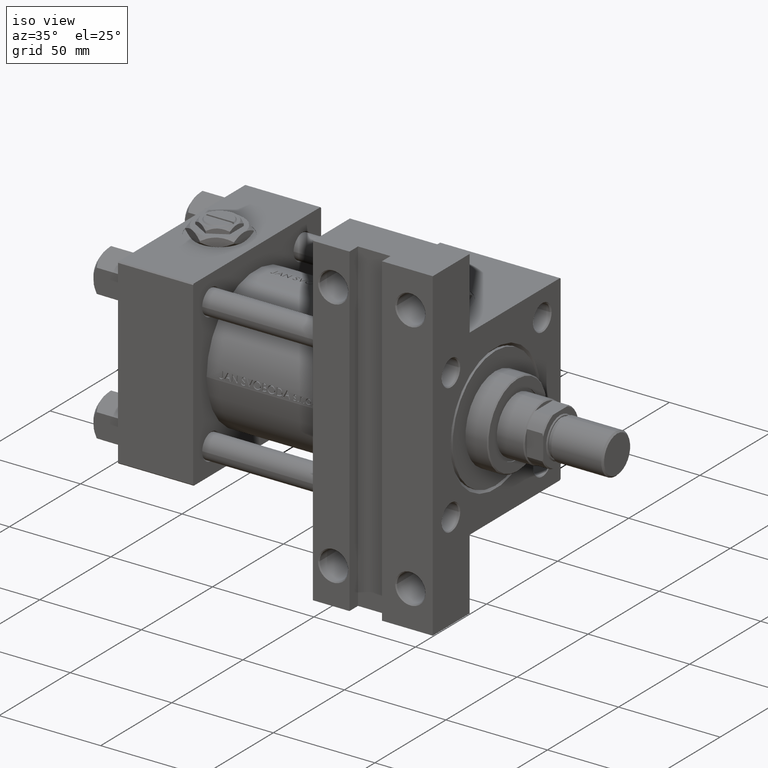
[diagram: clean part render]
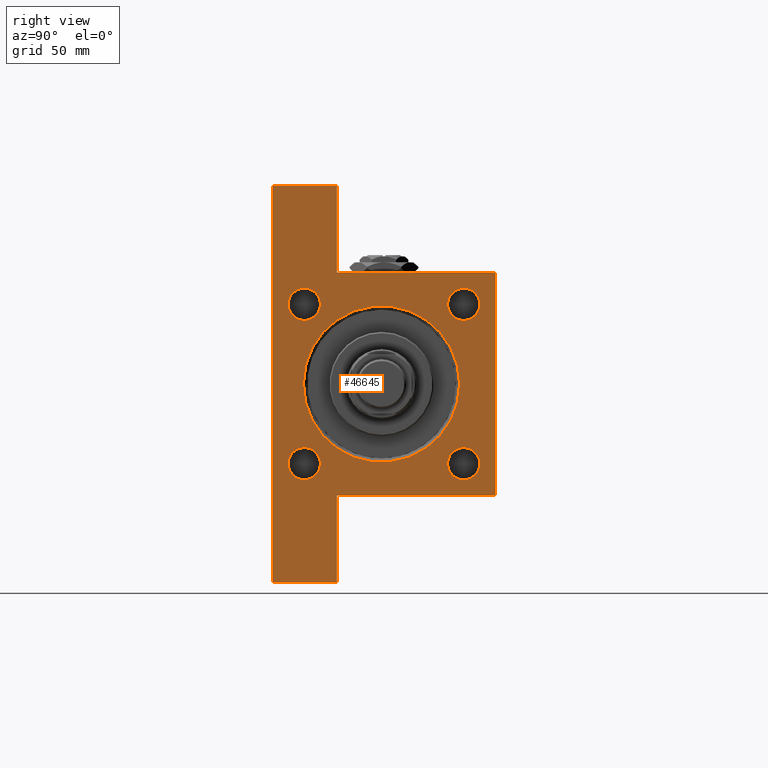
[diagram: tour spotlight — one face highlighted and labeled with its STEP entity id]
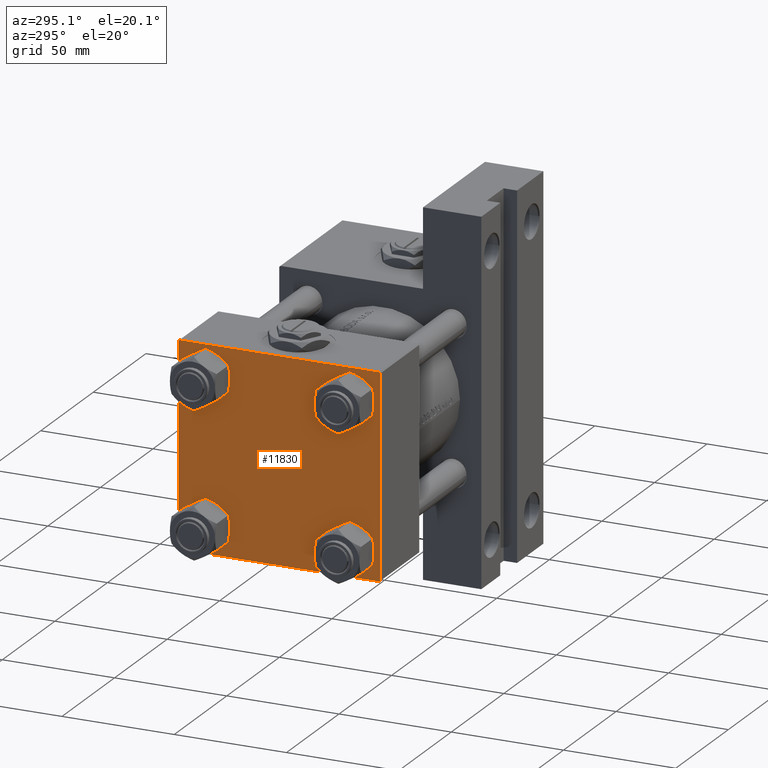
[diagram: tour spotlight — one face highlighted and labeled with its STEP entity id]
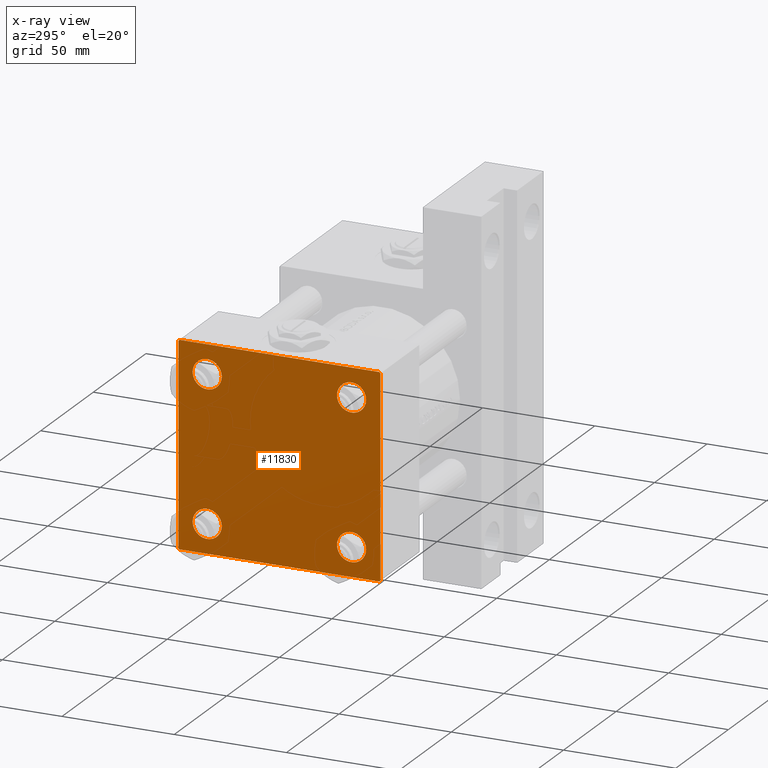
[diagram: x-ray of the same camera — body ghosted, this tour face saturated]
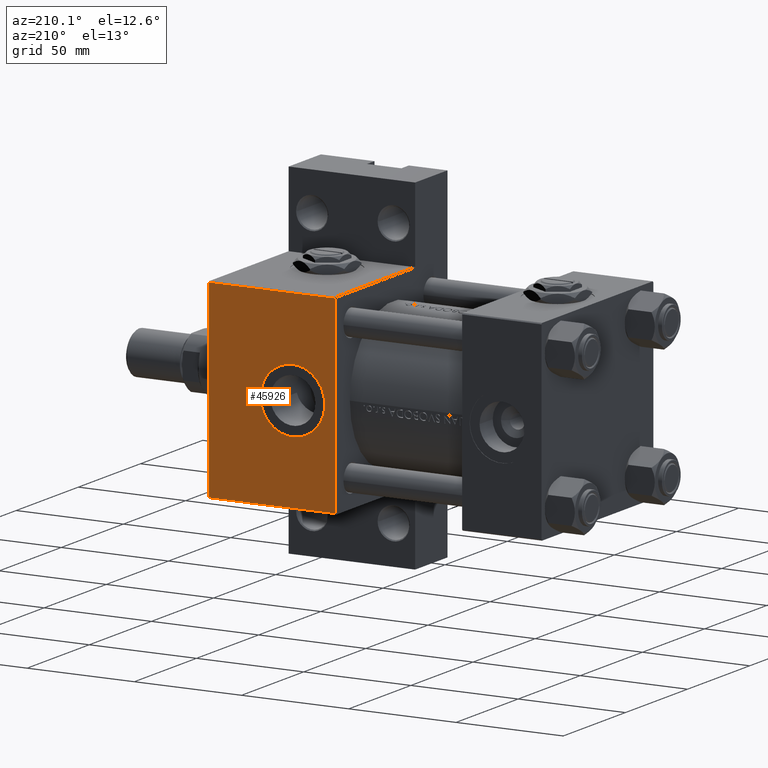
[diagram: tour spotlight — one face highlighted and labeled with its STEP entity id]
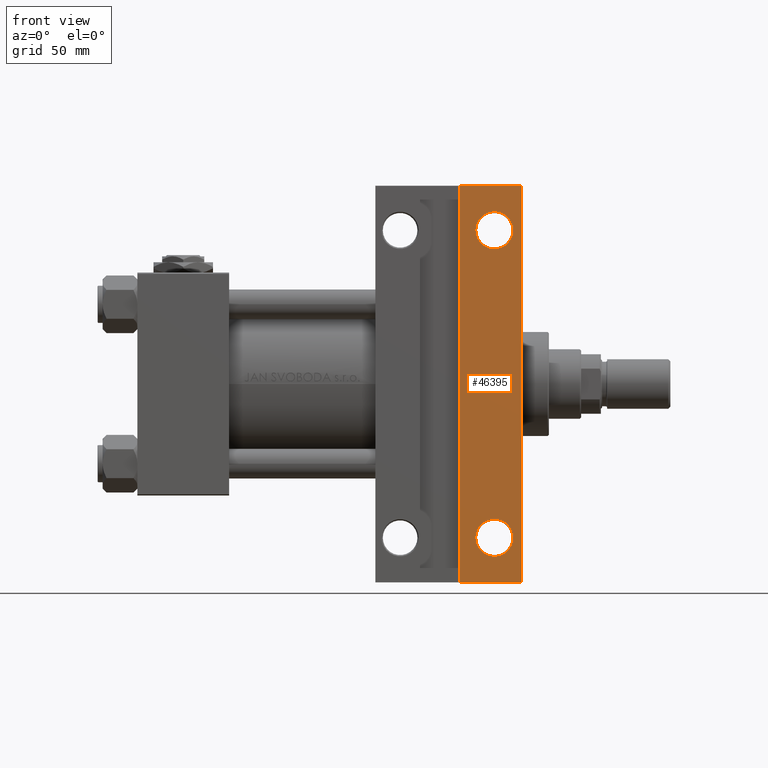
[diagram: tour spotlight — one face highlighted and labeled with its STEP entity id]
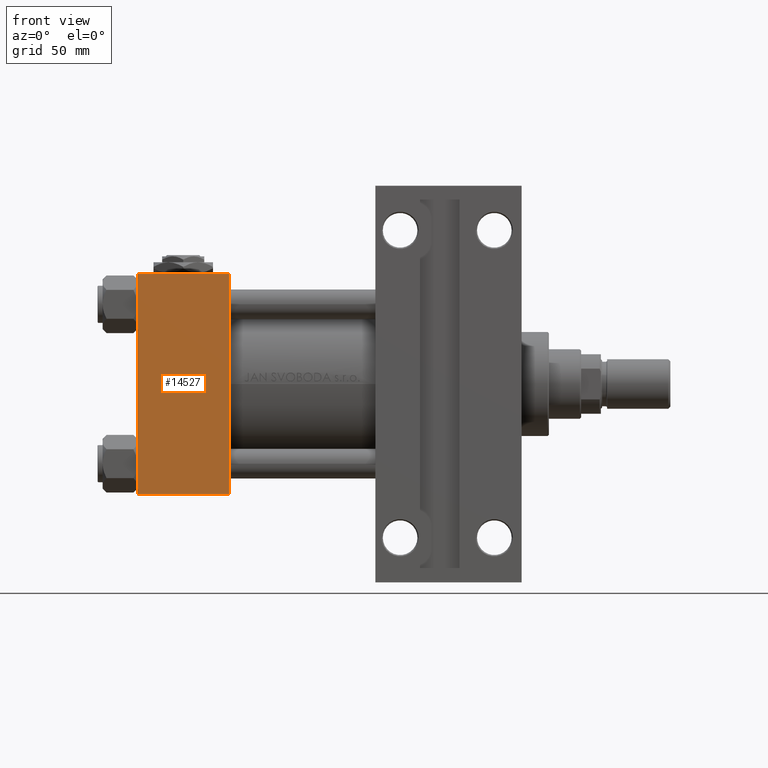
[diagram: tour spotlight — one face highlighted and labeled with its STEP entity id]
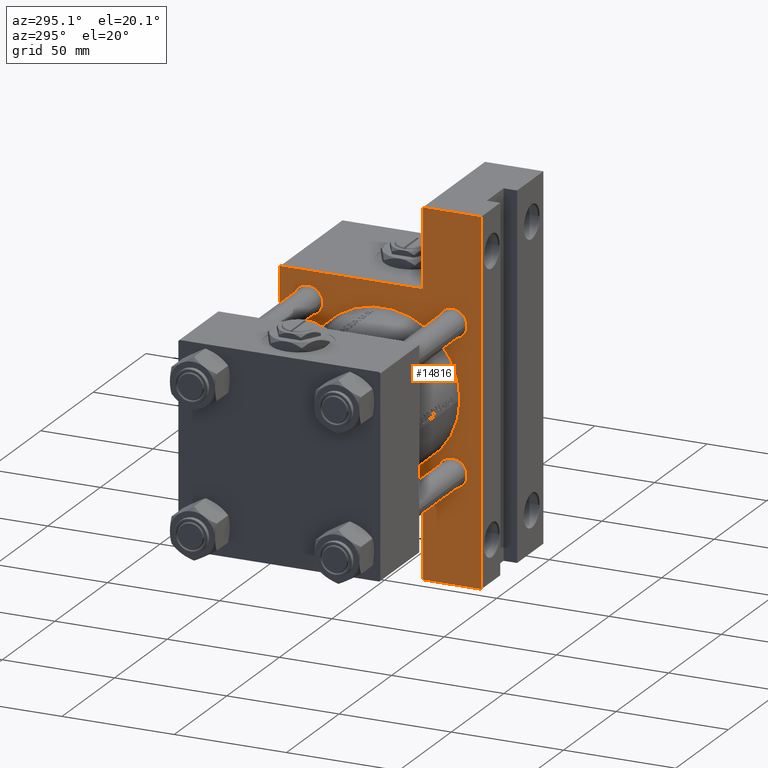
[diagram: tour spotlight — one face highlighted and labeled with its STEP entity id]
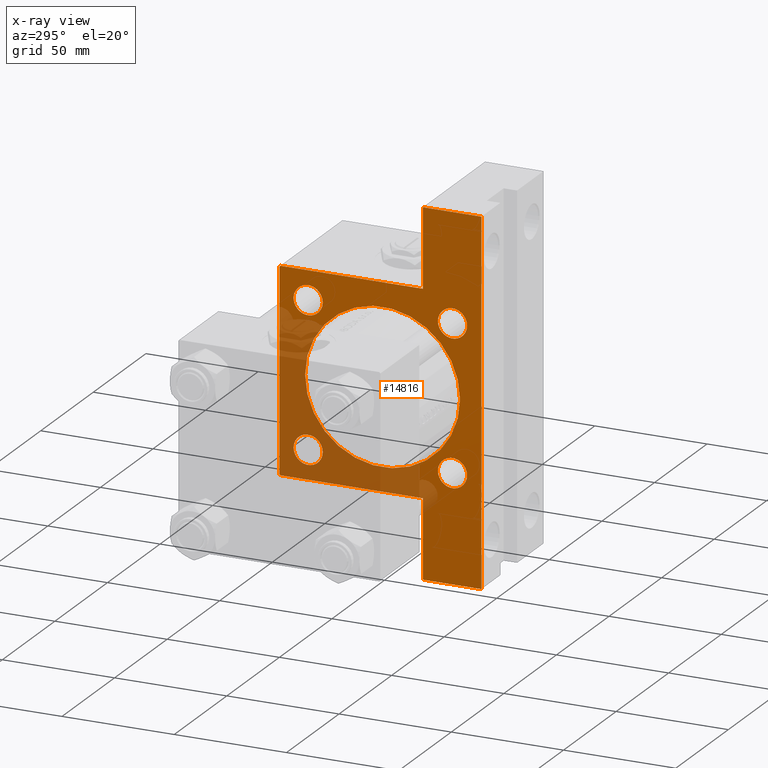
[diagram: x-ray of the same camera — body ghosted, this tour face saturated]
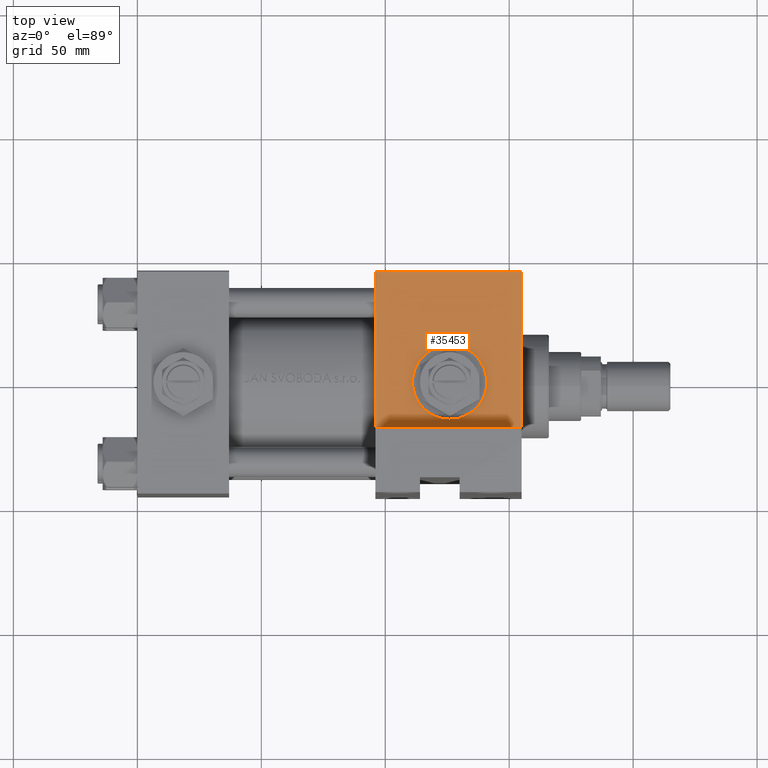
[diagram: tour spotlight — one face highlighted and labeled with its STEP entity id]
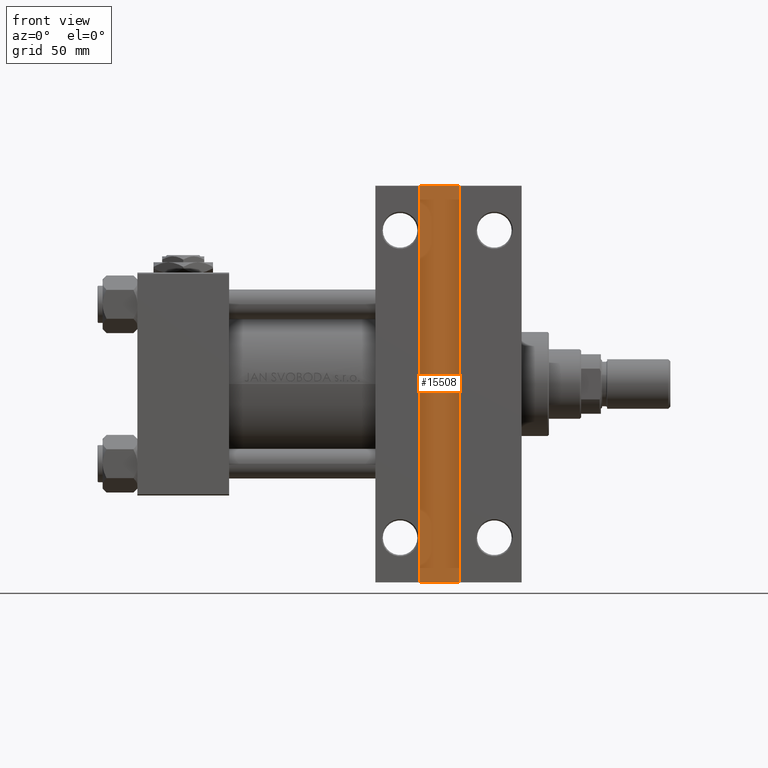
[diagram: tour spotlight — one face highlighted and labeled with its STEP entity id]
A machine part: a face-by-face anatomy tour. The part has 1217 B-rep faces; the first image is the clean iso view, then the 8 largest visible faces are spotlighted one at a time (largest first), each with its STEP entity span.

Face 1 — right view, entity #46645. In plain terms, the highlighted planar face has unit normal (-1, 0, -0).
Definition (entity closure, byte-faithful):
#147 = ORIENTED_EDGE ( 'NONE', *, *, #46190, .T. ) ;
#239 = EDGE_CURVE ( 'NONE', #43325, #18439, #8954, .T. ) ;
#549 = EDGE_CURVE ( 'NONE', #44969, #30738, #42176, .T. ) ;
#610 = ORIENTED_EDGE ( 'NONE', *, *, #20332, .T. ) ;
#789 = LINE ( 'NONE', #30963, #5545 ) ;
#1195 = CARTESIAN_POINT ( 'NONE',  ( 154.9999999999999716, -80.00000000000002842, -19.00000000000000000 ) ) ;
#1834 = ORIENTED_EDGE ( 'NONE', *, *, #31237, .T. ) ;
#1953 = PLANE ( 'NONE',  #44681 ) ;
#2257 = DIRECTION ( 'NONE',  ( -1.000000000000000000, -0.000000000000000000, -0.000000000000000000 ) ) ;
#2272 = DIRECTION ( 'NONE',  ( -1.000000000000000000, -0.000000000000000000, -0.000000000000000000 ) ) ;
#2455 = FACE_BOUND ( 'NONE', #11217, .T. ) ;
#2903 = CIRCLE ( 'NONE', #39300, 6.500000000000005329 ) ;
#2926 = CARTESIAN_POINT ( 'NONE',  ( 155.0000000000000000, 32.14999999999999147, -32.15000000000000568 ) ) ;
#2964 = CARTESIAN_POINT ( 'NONE',  ( 155.0000000000000000, 80.00000000000000000, -19.00000000000000000 ) ) ;
#3103 = CARTESIAN_POINT ( 'NONE',  ( 155.0000000000000000, 0.000000000000000000, -1.000000000000000888 ) ) ;
#3385 = LINE ( 'NONE', #15015, #14278 ) ;
#3554 = VERTEX_POINT ( 'NONE', #34773 ) ;
#3558 = EDGE_CURVE ( 'NONE', #46590, #13639, #789, .T. ) ;
#3719 = CARTESIAN_POINT ( 'NONE',  ( 154.9999999999999716, -80.00000000000002842, -19.00000000000000000 ) ) ;
#3722 = ORIENTED_EDGE ( 'NONE', *, *, #9832, .T. ) ;
#4582 = AXIS2_PLACEMENT_3D ( 'NONE', #4623, #20101, #48007 ) ;
#4623 = CARTESIAN_POINT ( 'NONE',  ( 155.0000000000000000, -32.15000000000001279, -32.15000000000000568 ) ) ;
#4973 = VERTEX_POINT ( 'NONE', #23503 ) ;
#5545 = VECTOR ( 'NONE', #16239, 1000.000000000000000 ) ;
#5581 = CARTESIAN_POINT ( 'NONE',  ( 155.0000000000000000, -32.14999999999999147, 32.14999999999999147 ) ) ;
#5785 = VECTOR ( 'NONE', #26783, 1000.000000000000000 ) ;
#5998 = DIRECTION ( 'NONE',  ( -0.000000000000000000, 0.000000000000000000, 1.000000000000000000 ) ) ;
#6151 = VECTOR ( 'NONE', #9508, 1000.000000000000000 ) ;
#6791 = ORIENTED_EDGE ( 'NONE', *, *, #26577, .T. ) ;
#7229 = DIRECTION ( 'NONE',  ( -1.000000000000000000, -0.000000000000000000, -0.000000000000000000 ) ) ;
#7730 = EDGE_LOOP ( 'NONE', ( #3722, #43934 ) ) ;
#7951 = EDGE_CURVE ( 'NONE', #11827, #46590, #11061, .T. ) ;
#8004 = CARTESIAN_POINT ( 'NONE',  ( 154.9999999999999432, 44.99999999999998579, -19.00000000000000000 ) ) ;
#8442 = ORIENTED_EDGE ( 'NONE', *, *, #32206, .T. ) ;
#8472 = CARTESIAN_POINT ( 'NONE',  ( 155.0000000000000000, 32.14999999999999147, 25.64999999999999858 ) ) ;
#8666 = CARTESIAN_POINT ( 'NONE',  ( 155.0000000000000000, 32.14999999999999147, 38.65000000000001279 ) ) ;
#8803 = CARTESIAN_POINT ( 'NONE',  ( 154.9999999999999716, -80.00000000000002842, -45.00000000000000000 ) ) ;
#8954 = CIRCLE ( 'NONE', #12988, 6.500000000000005329 ) ;
#9508 = DIRECTION ( 'NONE',  ( 0.000000000000000000, -1.000000000000000000, -1.541976423090495140E-16 ) ) ;
#9832 = EDGE_CURVE ( 'NONE', #42331, #24636, #2903, .T. ) ;
#9897 = ORIENTED_EDGE ( 'NONE', *, *, #7951, .T. ) ;
#10414 = EDGE_CURVE ( 'NONE', #21009, #21939, #29140, .T. ) ;
#10473 = DIRECTION ( 'NONE',  ( 0.000000000000000000, 7.709882115452478166E-17, -1.000000000000000000 ) ) ;
#11061 = LINE ( 'NONE', #3719, #40393 ) ;
#11153 = CARTESIAN_POINT ( 'NONE',  ( 155.0000000000000000, -32.14999999999999147, 32.14999999999999147 ) ) ;
#11155 = LINE ( 'NONE', #26636, #18718 ) ;
#11217 = EDGE_LOOP ( 'NONE', ( #24372, #16137 ) ) ;
#11463 = CARTESIAN_POINT ( 'NONE',  ( 155.0000000000000000, 32.14999999999999147, 32.15000000000000568 ) ) ;
#11548 = LINE ( 'NONE', #2964, #5785 ) ;
#11706 = DIRECTION ( 'NONE',  ( 0.000000000000000000, 0.000000000000000000, 1.000000000000000000 ) ) ;
#11827 = VERTEX_POINT ( 'NONE', #48685 ) ;
#12133 = DIRECTION ( 'NONE',  ( 0.000000000000000000, 0.000000000000000000, 1.000000000000000000 ) ) ;
#12174 = CARTESIAN_POINT ( 'NONE',  ( 155.0000000000000000, 45.00000000000001421, 44.50000000000000000 ) ) ;
#12374 = DIRECTION ( 'NONE',  ( -1.000000000000000000, -0.000000000000000000, -0.000000000000000000 ) ) ;
#12988 = AXIS2_PLACEMENT_3D ( 'NONE', #11463, #31732, #11706 ) ;
#13639 = VERTEX_POINT ( 'NONE', #8803 ) ;
#13792 = EDGE_CURVE ( 'NONE', #31527, #13639, #23297, .T. ) ;
#13993 = ORIENTED_EDGE ( 'NONE', *, *, #47435, .F. ) ;
#14278 = VECTOR ( 'NONE', #10473, 1000.000000000000000 ) ;
#14352 = VERTEX_POINT ( 'NONE', #14508 ) ;
#14508 = CARTESIAN_POINT ( 'NONE',  ( 155.0000000000000000, 44.50000000000001421, 45.00000000000000000 ) ) ;
#15015 = CARTESIAN_POINT ( 'NONE',  ( 155.0000000000000000, -45.00000000000000000, 44.99999999999998579 ) ) ;
#15987 = ORIENTED_EDGE ( 'NONE', *, *, #549, .T. ) ;
#16137 = ORIENTED_EDGE ( 'NONE', *, *, #32956, .T. ) ;
#16239 = DIRECTION ( 'NONE',  ( 0.000000000000000000, 0.000000000000000000, -1.000000000000000000 ) ) ;
#16710 = CARTESIAN_POINT ( 'NONE',  ( 155.0000000000000000, -32.14999999999999147, 38.64999999999999858 ) ) ;
#17218 = CARTESIAN_POINT ( 'NONE',  ( 155.0000000000000000, 45.00000000000001421, 45.00000000000000000 ) ) ;
#17721 = DIRECTION ( 'NONE',  ( 0.000000000000000000, 0.000000000000000000, 1.000000000000000000 ) ) ;
#18321 = CARTESIAN_POINT ( 'NONE',  ( 155.0000000000000000, 3.857637417314162689E-15, 30.50000000000000000 ) ) ;
#18439 = VERTEX_POINT ( 'NONE', #8472 ) ;
#18718 = VECTOR ( 'NONE', #42119, 1000.000000000000000 ) ;
#18764 = DIRECTION ( 'NONE',  ( 0.000000000000000000, -1.000000000000000000, 0.000000000000000000 ) ) ;
#19029 = DIRECTION ( 'NONE',  ( -1.000000000000000000, -0.000000000000000000, -0.000000000000000000 ) ) ;
#19030 = CARTESIAN_POINT ( 'NONE',  ( 155.0000000000000000, 0.000000000000000000, -1.000000000000000888 ) ) ;
#19734 = AXIS2_PLACEMENT_3D ( 'NONE', #3103, #12374, #12133 ) ;
#19780 = DIRECTION ( 'NONE',  ( -1.000000000000000000, -0.000000000000000000, -0.000000000000000000 ) ) ;
#20101 = DIRECTION ( 'NONE',  ( -1.000000000000000000, -0.000000000000000000, -0.000000000000000000 ) ) ;
#20167 = EDGE_LOOP ( 'NONE', ( #15987, #6791 ) ) ;
#20332 = EDGE_CURVE ( 'NONE', #28238, #36087, #42819, .T. ) ;
#20334 = CARTESIAN_POINT ( 'NONE',  ( 155.0000000000000000, 0.000000000000000000, -32.50000000000000000 ) ) ;
#20543 = LINE ( 'NONE', #40054, #22435 ) ;
#20578 = CARTESIAN_POINT ( 'NONE',  ( 155.0000000000000000, 32.14999999999999147, -32.15000000000000568 ) ) ;
#20810 = CIRCLE ( 'NONE', #4582, 6.500000000000005329 ) ;
#21009 = VERTEX_POINT ( 'NONE', #12174 ) ;
#21137 = VERTEX_POINT ( 'NONE', #36503 ) ;
#21939 = VERTEX_POINT ( 'NONE', #8004 ) ;
#22435 = VECTOR ( 'NONE', #39556, 1000.000000000000114 ) ;
#23067 = ORIENTED_EDGE ( 'NONE', *, *, #28175, .T. ) ;
#23086 = AXIS2_PLACEMENT_3D ( 'NONE', #2926, #7229, #42223 ) ;
#23297 = LINE ( 'NONE', #38506, #39476 ) ;
#23346 = EDGE_CURVE ( 'NONE', #24636, #42331, #45809, .T. ) ;
#23440 = EDGE_LOOP ( 'NONE', ( #48153, #49819, #1834, #42189, #43400, #9897, #43084, #38279, #13993, #147 ) ) ;
#23503 = CARTESIAN_POINT ( 'NONE',  ( 155.0000000000000000, -32.15000000000001279, -38.65000000000001990 ) ) ;
#23812 = DIRECTION ( 'NONE',  ( 0.000000000000000000, 0.000000000000000000, 1.000000000000000000 ) ) ;
#23983 = CIRCLE ( 'NONE', #30471, 6.500000000000005329 ) ;
#24372 = ORIENTED_EDGE ( 'NONE', *, *, #33304, .T. ) ;
#24636 = VERTEX_POINT ( 'NONE', #34798 ) ;
#25268 = FACE_BOUND ( 'NONE', #37077, .T. ) ;
#25335 = DIRECTION ( 'NONE',  ( 0.000000000000000000, 0.000000000000000000, 1.000000000000000000 ) ) ;
#25510 = FACE_BOUND ( 'NONE', #42083, .T. ) ;
#26334 = EDGE_CURVE ( 'NONE', #21009, #14352, #27958, .T. ) ;
#26577 = EDGE_CURVE ( 'NONE', #30738, #44969, #44033, .T. ) ;
#26633 = DIRECTION ( 'NONE',  ( 0.000000000000000000, 0.000000000000000000, 1.000000000000000000 ) ) ;
#26636 = CARTESIAN_POINT ( 'NONE',  ( 155.0000000000000000, 80.00000000000000000, -19.00000000000000000 ) ) ;
#26783 = DIRECTION ( 'NONE',  ( 0.000000000000000000, 0.000000000000000000, -1.000000000000000000 ) ) ;
#27678 = DIRECTION ( 'NONE',  ( 0.000000000000000000, 0.000000000000000000, 1.000000000000000000 ) ) ;
#27958 = LINE ( 'NONE', #43451, #33504 ) ;
#28175 = EDGE_CURVE ( 'NONE', #36087, #28238, #49003, .T. ) ;
#28238 = VERTEX_POINT ( 'NONE', #16710 ) ;
#29140 = LINE ( 'NONE', #17218, #37742 ) ;
#29378 = DIRECTION ( 'NONE',  ( 0.000000000000000000, 0.000000000000000000, -1.000000000000000000 ) ) ;
#29562 = FACE_OUTER_BOUND ( 'NONE', #23440, .T. ) ;
#30471 = AXIS2_PLACEMENT_3D ( 'NONE', #36967, #2257, #17721 ) ;
#30738 = VERTEX_POINT ( 'NONE', #18321 ) ;
#30840 = DIRECTION ( 'NONE',  ( 7.930164461608253537E-16, -1.000000000000000000, -0.000000000000000000 ) ) ;
#30963 = CARTESIAN_POINT ( 'NONE',  ( 154.9999999999999716, -80.00000000000002842, -19.00000000000000000 ) ) ;
#31237 = EDGE_CURVE ( 'NONE', #14352, #44998, #36408, .T. ) ;
#31527 = VERTEX_POINT ( 'NONE', #49290 ) ;
#31732 = DIRECTION ( 'NONE',  ( -1.000000000000000000, -0.000000000000000000, -0.000000000000000000 ) ) ;
#32206 = EDGE_CURVE ( 'NONE', #18439, #43325, #41003, .T. ) ;
#32396 = EDGE_CURVE ( 'NONE', #21137, #11827, #3385, .T. ) ;
#32597 = CARTESIAN_POINT ( 'NONE',  ( 155.0000000000000000, 45.00000000000001421, 45.00000000000000000 ) ) ;
#32956 = EDGE_CURVE ( 'NONE', #40649, #4973, #23983, .T. ) ;
#33304 = EDGE_CURVE ( 'NONE', #4973, #40649, #20810, .T. ) ;
#33504 = VECTOR ( 'NONE', #43199, 1000.000000000000114 ) ;
#33611 = CARTESIAN_POINT ( 'NONE',  ( 155.0000000000000000, -32.14999999999999147, 25.64999999999998437 ) ) ;
#33619 = EDGE_CURVE ( 'NONE', #44998, #21137, #20543, .T. ) ;
#34773 = CARTESIAN_POINT ( 'NONE',  ( 155.0000000000000000, 80.00000000000000000, -19.00000000000000000 ) ) ;
#34798 = CARTESIAN_POINT ( 'NONE',  ( 155.0000000000000000, 32.14999999999999147, -25.64999999999999858 ) ) ;
#35519 = AXIS2_PLACEMENT_3D ( 'NONE', #5581, #2272, #25335 ) ;
#35908 = DIRECTION ( 'NONE',  ( 0.000000000000000000, 0.000000000000000000, 1.000000000000000000 ) ) ;
#36087 = VERTEX_POINT ( 'NONE', #33611 ) ;
#36173 = FACE_BOUND ( 'NONE', #7730, .T. ) ;
#36408 = LINE ( 'NONE', #32597, #6151 ) ;
#36503 = CARTESIAN_POINT ( 'NONE',  ( 155.0000000000000000, -45.00000000000000000, 44.49999999999998579 ) ) ;
#36967 = CARTESIAN_POINT ( 'NONE',  ( 155.0000000000000000, -32.15000000000001279, -32.15000000000000568 ) ) ;
#37077 = EDGE_LOOP ( 'NONE', ( #8442, #37407 ) ) ;
#37407 = ORIENTED_EDGE ( 'NONE', *, *, #239, .T. ) ;
#37742 = VECTOR ( 'NONE', #29378, 1000.000000000000000 ) ;
#37966 = CARTESIAN_POINT ( 'NONE',  ( 155.0000000000000000, -32.15000000000001279, -25.64999999999999858 ) ) ;
#38279 = ORIENTED_EDGE ( 'NONE', *, *, #13792, .F. ) ;
#38506 = CARTESIAN_POINT ( 'NONE',  ( 155.0000000000000000, 45.00000000000001421, -45.00000000000000000 ) ) ;
#39300 = AXIS2_PLACEMENT_3D ( 'NONE', #20578, #43410, #27678 ) ;
#39476 = VECTOR ( 'NONE', #18764, 1000.000000000000000 ) ;
#39556 = DIRECTION ( 'NONE',  ( -0.000000000000000000, -0.7071067811865474617, -0.7071067811865474617 ) ) ;
#40054 = CARTESIAN_POINT ( 'NONE',  ( 155.0000000000000000, -45.00000000000000000, 44.49999999999998579 ) ) ;
#40064 = AXIS2_PLACEMENT_3D ( 'NONE', #11153, #19029, #26633 ) ;
#40393 = VECTOR ( 'NONE', #30840, 1000.000000000000000 ) ;
#40649 = VERTEX_POINT ( 'NONE', #37966 ) ;
#40736 = CARTESIAN_POINT ( 'NONE',  ( 155.0000000000000000, 0.000000000000000000, 0.000000000000000000 ) ) ;
#41003 = CIRCLE ( 'NONE', #44285, 6.500000000000005329 ) ;
#42083 = EDGE_LOOP ( 'NONE', ( #23067, #610 ) ) ;
#42119 = DIRECTION ( 'NONE',  ( -1.586032892321651496E-15, -1.000000000000000000, 0.000000000000000000 ) ) ;
#42176 = CIRCLE ( 'NONE', #43813, 31.50000000000000000 ) ;
#42189 = ORIENTED_EDGE ( 'NONE', *, *, #33619, .T. ) ;
#42223 = DIRECTION ( 'NONE',  ( 0.000000000000000000, 0.000000000000000000, 1.000000000000000000 ) ) ;
#42331 = VERTEX_POINT ( 'NONE', #49559 ) ;
#42819 = CIRCLE ( 'NONE', #35519, 6.500000000000005329 ) ;
#43084 = ORIENTED_EDGE ( 'NONE', *, *, #3558, .T. ) ;
#43199 = DIRECTION ( 'NONE',  ( 0.000000000000000000, -0.7071067811865474617, 0.7071067811865474617 ) ) ;
#43325 = VERTEX_POINT ( 'NONE', #8666 ) ;
#43400 = ORIENTED_EDGE ( 'NONE', *, *, #32396, .T. ) ;
#43408 = CARTESIAN_POINT ( 'NONE',  ( 155.0000000000000000, -44.49999999999997158, 44.99999999999998579 ) ) ;
#43410 = DIRECTION ( 'NONE',  ( -1.000000000000000000, -0.000000000000000000, -0.000000000000000000 ) ) ;
#43451 = CARTESIAN_POINT ( 'NONE',  ( 155.0000000000000000, 44.50000000000001421, 45.00000000000000000 ) ) ;
#43813 = AXIS2_PLACEMENT_3D ( 'NONE', #19030, #19780, #23812 ) ;
#43934 = ORIENTED_EDGE ( 'NONE', *, *, #23346, .T. ) ;
#44033 = CIRCLE ( 'NONE', #19734, 31.50000000000000000 ) ;
#44285 = AXIS2_PLACEMENT_3D ( 'NONE', #47342, #44299, #35908 ) ;
#44299 = DIRECTION ( 'NONE',  ( -1.000000000000000000, -0.000000000000000000, -0.000000000000000000 ) ) ;
#44565 = FACE_BOUND ( 'NONE', #20167, .T. ) ;
#44681 = AXIS2_PLACEMENT_3D ( 'NONE', #40736, #48870, #5998 ) ;
#44969 = VERTEX_POINT ( 'NONE', #20334 ) ;
#44998 = VERTEX_POINT ( 'NONE', #43408 ) ;
#45809 = CIRCLE ( 'NONE', #23086, 6.500000000000005329 ) ;
#46190 = EDGE_CURVE ( 'NONE', #3554, #21939, #11155, .T. ) ;
#46590 = VERTEX_POINT ( 'NONE', #1195 ) ;
#46645 = ADVANCED_FACE ( 'NONE', ( #25268, #25510, #2455, #36173, #44565, #29562 ), #1953, .F. ) ;
#47342 = CARTESIAN_POINT ( 'NONE',  ( 155.0000000000000000, 32.14999999999999147, 32.15000000000000568 ) ) ;
#47435 = EDGE_CURVE ( 'NONE', #3554, #31527, #11548, .T. ) ;
#48007 = DIRECTION ( 'NONE',  ( 0.000000000000000000, 0.000000000000000000, 1.000000000000000000 ) ) ;
#48153 = ORIENTED_EDGE ( 'NONE', *, *, #10414, .F. ) ;
#48685 = CARTESIAN_POINT ( 'NONE',  ( 155.0000000000000000, -44.99999999999999289, -18.99999999999997513 ) ) ;
#48870 = DIRECTION ( 'NONE',  ( -1.000000000000000000, 0.000000000000000000, -0.000000000000000000 ) ) ;
#49003 = CIRCLE ( 'NONE', #40064, 6.500000000000005329 ) ;
#49290 = CARTESIAN_POINT ( 'NONE',  ( 155.0000000000000000, 80.00000000000000000, -45.00000000000000000 ) ) ;
#49559 = CARTESIAN_POINT ( 'NONE',  ( 155.0000000000000000, 32.14999999999999147, -38.65000000000001990 ) ) ;
#49819 = ORIENTED_EDGE ( 'NONE', *, *, #26334, .T. ) ;

Face 2 — auxiliary view, entity #11830. An x-ray twin of the same camera follows (body ghosted, this face saturated) — the face is partly hidden behind the body. In plain terms, the highlighted planar face has unit normal (-1, 0, -0).
Definition (entity closure, byte-faithful):
#389 = CARTESIAN_POINT ( 'NONE',  ( 0.000000000000000000, 32.14999999999999147, -32.15000000000000568 ) ) ;
#483 = ORIENTED_EDGE ( 'NONE', *, *, #36974, .T. ) ;
#801 = EDGE_CURVE ( 'NONE', #33495, #13530, #9752, .T. ) ;
#1255 = EDGE_CURVE ( 'NONE', #4791, #43777, #48384, .T. ) ;
#1592 = ORIENTED_EDGE ( 'NONE', *, *, #14480, .T. ) ;
#2415 = ORIENTED_EDGE ( 'NONE', *, *, #38239, .T. ) ;
#2673 = LINE ( 'NONE', #40959, #19324 ) ;
#2853 = VERTEX_POINT ( 'NONE', #30309 ) ;
#3004 = FACE_OUTER_BOUND ( 'NONE', #33280, .T. ) ;
#3100 = CARTESIAN_POINT ( 'NONE',  ( 0.000000000000000000, 44.74999999999999289, 44.74999999999999289 ) ) ;
#3156 = EDGE_CURVE ( 'NONE', #12328, #9908, #17681, .T. ) ;
#3194 = VERTEX_POINT ( 'NONE', #26040 ) ;
#3460 = EDGE_CURVE ( 'NONE', #5292, #2853, #6901, .T. ) ;
#3563 = DIRECTION ( 'NONE',  ( 1.000000000000000000, -0.000000000000000000, 0.000000000000000000 ) ) ;
#3942 = CARTESIAN_POINT ( 'NONE',  ( 0.000000000000000000, -45.00000000000000711, 45.00000000000000000 ) ) ;
#4549 = AXIS2_PLACEMENT_3D ( 'NONE', #37534, #3563, #7598 ) ;
#4791 = VERTEX_POINT ( 'NONE', #12893 ) ;
#5292 = VERTEX_POINT ( 'NONE', #21948 ) ;
#5404 = CARTESIAN_POINT ( 'NONE',  ( 0.000000000000000000, -45.00000000000000000, -44.49999999999995737 ) ) ;
#5876 = CARTESIAN_POINT ( 'NONE',  ( 0.000000000000000000, -32.14999999999997726, -32.15000000000001279 ) ) ;
#6562 = FACE_BOUND ( 'NONE', #25505, .T. ) ;
#6901 = LINE ( 'NONE', #3100, #45227 ) ;
#6972 = ORIENTED_EDGE ( 'NONE', *, *, #1255, .T. ) ;
#7164 = EDGE_LOOP ( 'NONE', ( #41203, #6972 ) ) ;
#7598 = DIRECTION ( 'NONE',  ( 0.000000000000000000, 0.000000000000000000, 1.000000000000000000 ) ) ;
#7988 = DIRECTION ( 'NONE',  ( 0.000000000000000000, 0.000000000000000000, -1.000000000000000000 ) ) ;
#8235 = DIRECTION ( 'NONE',  ( 0.000000000000000000, 7.709882115452476934E-17, -1.000000000000000000 ) ) ;
#9002 = LINE ( 'NONE', #20183, #23871 ) ;
#9512 = ORIENTED_EDGE ( 'NONE', *, *, #25299, .T. ) ;
#9663 = DIRECTION ( 'NONE',  ( 0.000000000000000000, 0.000000000000000000, 1.000000000000000000 ) ) ;
#9750 = EDGE_CURVE ( 'NONE', #13530, #33495, #40129, .T. ) ;
#9752 = CIRCLE ( 'NONE', #40539, 6.500000000000019540 ) ;
#9908 = VERTEX_POINT ( 'NONE', #27430 ) ;
#10175 = EDGE_CURVE ( 'NONE', #43777, #4791, #14232, .T. ) ;
#10470 = VERTEX_POINT ( 'NONE', #24820 ) ;
#10692 = ORIENTED_EDGE ( 'NONE', *, *, #11043, .F. ) ;
#10747 = ORIENTED_EDGE ( 'NONE', *, *, #3460, .T. ) ;
#10963 = DIRECTION ( 'NONE',  ( 1.000000000000000000, -0.000000000000000000, 0.000000000000000000 ) ) ;
#11026 = VECTOR ( 'NONE', #8235, 1000.000000000000000 ) ;
#11043 = EDGE_CURVE ( 'NONE', #12328, #48040, #34612, .T. ) ;
#11830 = ADVANCED_FACE ( 'NONE', ( #6562, #41549, #29142, #22019, #3004 ), #33931, .T. ) ;
#12328 = VERTEX_POINT ( 'NONE', #25897 ) ;
#12840 = VECTOR ( 'NONE', #38941, 1000.000000000000114 ) ;
#12893 = CARTESIAN_POINT ( 'NONE',  ( 0.000000000000000000, 32.14999999999999147, 25.65000000000002700 ) ) ;
#13530 = VERTEX_POINT ( 'NONE', #19979 ) ;
#13613 = CARTESIAN_POINT ( 'NONE',  ( -0.000000000000000000, -44.75000000000029843, 44.74999999999967315 ) ) ;
#13651 = DIRECTION ( 'NONE',  ( 1.000000000000000000, -0.000000000000000000, 0.000000000000000000 ) ) ;
#13734 = CARTESIAN_POINT ( 'NONE',  ( 0.000000000000000000, -32.14999999999997726, 38.65000000000003411 ) ) ;
#14232 = CIRCLE ( 'NONE', #4549, 6.499999999999977796 ) ;
#14272 = AXIS2_PLACEMENT_3D ( 'NONE', #33414, #25082, #17467 ) ;
#14458 = VECTOR ( 'NONE', #22653, 1000.000000000000114 ) ;
#14466 = CIRCLE ( 'NONE', #16089, 6.499999999999977796 ) ;
#14480 = EDGE_CURVE ( 'NONE', #3194, #37038, #28144, .T. ) ;
#15765 = CARTESIAN_POINT ( 'NONE',  ( 0.000000000000000000, 32.14999999999999147, 32.15000000000000568 ) ) ;
#15846 = ORIENTED_EDGE ( 'NONE', *, *, #9750, .T. ) ;
#16089 = AXIS2_PLACEMENT_3D ( 'NONE', #389, #31812, #35127 ) ;
#16247 = CARTESIAN_POINT ( 'NONE',  ( 0.000000000000000000, 32.14999999999999147, -32.15000000000000568 ) ) ;
#16352 = EDGE_CURVE ( 'NONE', #10470, #33291, #25202, .T. ) ;
#16808 = VERTEX_POINT ( 'NONE', #30791 ) ;
#17467 = DIRECTION ( 'NONE',  ( -0.000000000000000000, 0.000000000000000000, 1.000000000000000000 ) ) ;
#17662 = VECTOR ( 'NONE', #29108, 1000.000000000000114 ) ;
#17681 = LINE ( 'NONE', #13613, #17662 ) ;
#17682 = VECTOR ( 'NONE', #7988, 1000.000000000000000 ) ;
#19324 = VECTOR ( 'NONE', #33584, 1000.000000000000000 ) ;
#19489 = DIRECTION ( 'NONE',  ( 1.000000000000000000, -0.000000000000000000, 0.000000000000000000 ) ) ;
#19520 = EDGE_CURVE ( 'NONE', #2853, #10470, #47054, .T. ) ;
#19979 = CARTESIAN_POINT ( 'NONE',  ( 0.000000000000000000, -32.14999999999997726, 25.64999999999999147 ) ) ;
#20065 = DIRECTION ( 'NONE',  ( 1.000000000000000000, -0.000000000000000000, 0.000000000000000000 ) ) ;
#20183 = CARTESIAN_POINT ( 'NONE',  ( 0.000000000000000000, 44.99999999999998579, -44.99999999999998579 ) ) ;
#20359 = CARTESIAN_POINT ( 'NONE',  ( 0.000000000000000000, 44.49999999999998579, -44.99999999999998579 ) ) ;
#21948 = CARTESIAN_POINT ( 'NONE',  ( 0.000000000000000000, 44.49999999999998579, 45.00000000000001421 ) ) ;
#22019 = FACE_BOUND ( 'NONE', #7164, .T. ) ;
#22143 = CARTESIAN_POINT ( 'NONE',  ( 0.000000000000000000, -32.14999999999997726, -25.65000000000003411 ) ) ;
#22358 = DIRECTION ( 'NONE',  ( 0.000000000000000000, 0.7071067811865474617, -0.7071067811865474617 ) ) ;
#22379 = DIRECTION ( 'NONE',  ( 0.000000000000000000, 0.000000000000000000, 1.000000000000000000 ) ) ;
#22503 = AXIS2_PLACEMENT_3D ( 'NONE', #16247, #20065, #26918 ) ;
#22653 = DIRECTION ( 'NONE',  ( -0.000000000000000000, -0.7071067811865474617, -0.7071067811865474617 ) ) ;
#22998 = ORIENTED_EDGE ( 'NONE', *, *, #801, .T. ) ;
#23339 = AXIS2_PLACEMENT_3D ( 'NONE', #42558, #19489, #35686 ) ;
#23476 = CARTESIAN_POINT ( 'NONE',  ( 0.000000000000000000, -44.74999999999998579, -44.74999999999998579 ) ) ;
#23871 = VECTOR ( 'NONE', #24217, 1000.000000000000000 ) ;
#24217 = DIRECTION ( 'NONE',  ( 0.000000000000000000, -1.000000000000000000, -1.541976423090495633E-16 ) ) ;
#24753 = AXIS2_PLACEMENT_3D ( 'NONE', #42164, #10963, #22379 ) ;
#24820 = CARTESIAN_POINT ( 'NONE',  ( 0.000000000000000000, 44.99999999999998579, -44.49999999999995737 ) ) ;
#24841 = EDGE_CURVE ( 'NONE', #37919, #45861, #49832, .T. ) ;
#25082 = DIRECTION ( 'NONE',  ( -1.000000000000000000, 0.000000000000000000, -0.000000000000000000 ) ) ;
#25202 = LINE ( 'NONE', #33045, #14458 ) ;
#25299 = EDGE_CURVE ( 'NONE', #33291, #16808, #9002, .T. ) ;
#25505 = EDGE_LOOP ( 'NONE', ( #22998, #15846 ) ) ;
#25652 = AXIS2_PLACEMENT_3D ( 'NONE', #15765, #27190, #38599 ) ;
#25897 = CARTESIAN_POINT ( 'NONE',  ( 0.000000000000000000, -45.00000000000000711, 44.49999999999997158 ) ) ;
#26040 = CARTESIAN_POINT ( 'NONE',  ( 0.000000000000000000, 32.14999999999999147, -25.65000000000002700 ) ) ;
#26918 = DIRECTION ( 'NONE',  ( 0.000000000000000000, 0.000000000000000000, 1.000000000000000000 ) ) ;
#27190 = DIRECTION ( 'NONE',  ( 1.000000000000000000, -0.000000000000000000, 0.000000000000000000 ) ) ;
#27430 = CARTESIAN_POINT ( 'NONE',  ( 0.000000000000000000, -44.49999999999995737, 45.00000000000000000 ) ) ;
#28144 = CIRCLE ( 'NONE', #22503, 6.499999999999977796 ) ;
#29108 = DIRECTION ( 'NONE',  ( -0.000000000000000000, 0.7071067811865425767, 0.7071067811865524577 ) ) ;
#29142 = FACE_BOUND ( 'NONE', #30647, .T. ) ;
#29148 = DIRECTION ( 'NONE',  ( 0.000000000000000000, 0.000000000000000000, 1.000000000000000000 ) ) ;
#29528 = ORIENTED_EDGE ( 'NONE', *, *, #16352, .T. ) ;
#29867 = ORIENTED_EDGE ( 'NONE', *, *, #40925, .F. ) ;
#30309 = CARTESIAN_POINT ( 'NONE',  ( 0.000000000000000000, 44.99999999999998579, 44.50000000000001421 ) ) ;
#30647 = EDGE_LOOP ( 'NONE', ( #1592, #2415 ) ) ;
#30791 = CARTESIAN_POINT ( 'NONE',  ( 0.000000000000000000, -44.49999999999995737, -45.00000000000000000 ) ) ;
#31812 = DIRECTION ( 'NONE',  ( 1.000000000000000000, -0.000000000000000000, 0.000000000000000000 ) ) ;
#32014 = EDGE_LOOP ( 'NONE', ( #483, #44618 ) ) ;
#32349 = ORIENTED_EDGE ( 'NONE', *, *, #19520, .T. ) ;
#33045 = CARTESIAN_POINT ( 'NONE',  ( 0.000000000000000000, 44.74999999999998579, -44.74999999999998579 ) ) ;
#33280 = EDGE_LOOP ( 'NONE', ( #32349, #29528, #9512, #44364, #10692, #35600, #29867, #10747 ) ) ;
#33291 = VERTEX_POINT ( 'NONE', #20359 ) ;
#33414 = CARTESIAN_POINT ( 'NONE',  ( 0.000000000000000000, 0.000000000000000000, 0.000000000000000000 ) ) ;
#33495 = VERTEX_POINT ( 'NONE', #13734 ) ;
#33584 = DIRECTION ( 'NONE',  ( 0.000000000000000000, -1.000000000000000000, -1.541976423090495387E-16 ) ) ;
#33608 = AXIS2_PLACEMENT_3D ( 'NONE', #5876, #36781, #9663 ) ;
#33931 = PLANE ( 'NONE',  #14272 ) ;
#34612 = LINE ( 'NONE', #3942, #11026 ) ;
#35127 = DIRECTION ( 'NONE',  ( 0.000000000000000000, 0.000000000000000000, 1.000000000000000000 ) ) ;
#35600 = ORIENTED_EDGE ( 'NONE', *, *, #3156, .T. ) ;
#35686 = DIRECTION ( 'NONE',  ( 0.000000000000000000, 0.000000000000000000, 1.000000000000000000 ) ) ;
#35868 = LINE ( 'NONE', #23476, #12840 ) ;
#36781 = DIRECTION ( 'NONE',  ( 1.000000000000000000, -0.000000000000000000, 0.000000000000000000 ) ) ;
#36974 = EDGE_CURVE ( 'NONE', #45861, #37919, #45225, .T. ) ;
#37038 = VERTEX_POINT ( 'NONE', #43067 ) ;
#37534 = CARTESIAN_POINT ( 'NONE',  ( 0.000000000000000000, 32.14999999999999147, 32.15000000000000568 ) ) ;
#37919 = VERTEX_POINT ( 'NONE', #46141 ) ;
#38239 = EDGE_CURVE ( 'NONE', #37038, #3194, #14466, .T. ) ;
#38294 = EDGE_CURVE ( 'NONE', #16808, #48040, #35868, .T. ) ;
#38599 = DIRECTION ( 'NONE',  ( 0.000000000000000000, 0.000000000000000000, 1.000000000000000000 ) ) ;
#38667 = CARTESIAN_POINT ( 'NONE',  ( 0.000000000000000000, 44.99999999999998579, 45.00000000000001421 ) ) ;
#38941 = DIRECTION ( 'NONE',  ( 0.000000000000000000, -0.7071067811865474617, 0.7071067811865474617 ) ) ;
#40129 = CIRCLE ( 'NONE', #24753, 6.500000000000019540 ) ;
#40539 = AXIS2_PLACEMENT_3D ( 'NONE', #49181, #13651, #29148 ) ;
#40925 = EDGE_CURVE ( 'NONE', #5292, #9908, #2673, .T. ) ;
#40959 = CARTESIAN_POINT ( 'NONE',  ( 0.000000000000000000, 44.99999999999998579, 45.00000000000001421 ) ) ;
#41203 = ORIENTED_EDGE ( 'NONE', *, *, #10175, .T. ) ;
#41549 = FACE_BOUND ( 'NONE', #32014, .T. ) ;
#42164 = CARTESIAN_POINT ( 'NONE',  ( 0.000000000000000000, -32.14999999999997726, 32.15000000000001279 ) ) ;
#42558 = CARTESIAN_POINT ( 'NONE',  ( 0.000000000000000000, -32.14999999999997726, -32.15000000000001279 ) ) ;
#42814 = CARTESIAN_POINT ( 'NONE',  ( 0.000000000000000000, 32.14999999999999147, 38.64999999999999147 ) ) ;
#43067 = CARTESIAN_POINT ( 'NONE',  ( 0.000000000000000000, 32.14999999999999147, -38.64999999999998437 ) ) ;
#43777 = VERTEX_POINT ( 'NONE', #42814 ) ;
#44364 = ORIENTED_EDGE ( 'NONE', *, *, #38294, .T. ) ;
#44618 = ORIENTED_EDGE ( 'NONE', *, *, #24841, .T. ) ;
#45225 = CIRCLE ( 'NONE', #23339, 6.499999999999977796 ) ;
#45227 = VECTOR ( 'NONE', #22358, 1000.000000000000114 ) ;
#45861 = VERTEX_POINT ( 'NONE', #22143 ) ;
#46141 = CARTESIAN_POINT ( 'NONE',  ( 0.000000000000000000, -32.14999999999997726, -38.64999999999999147 ) ) ;
#47054 = LINE ( 'NONE', #38667, #17682 ) ;
#48040 = VERTEX_POINT ( 'NONE', #5404 ) ;
#48384 = CIRCLE ( 'NONE', #25652, 6.499999999999977796 ) ;
#49181 = CARTESIAN_POINT ( 'NONE',  ( 0.000000000000000000, -32.14999999999997726, 32.15000000000001279 ) ) ;
#49832 = CIRCLE ( 'NONE', #33608, 6.499999999999977796 ) ;

Face 3 — auxiliary view, entity #45926. In plain terms, the highlighted planar face has unit normal (0, -1, -0).
Definition (entity closure, byte-faithful):
#28 = VECTOR ( 'NONE', #33779, 1000.000000000000000 ) ;
#887 = CARTESIAN_POINT ( 'NONE',  ( 116.0000000000000000, -6.938893903907227589E-15, 44.99999999999999289 ) ) ;
#945 = ORIENTED_EDGE ( 'NONE', *, *, #31237, .F. ) ;
#1569 = AXIS2_PLACEMENT_3D ( 'NONE', #21506, #48680, #25075 ) ;
#2934 = ORIENTED_EDGE ( 'NONE', *, *, #44837, .T. ) ;
#6151 = VECTOR ( 'NONE', #9508, 1000.000000000000000 ) ;
#6376 = VERTEX_POINT ( 'NONE', #18363 ) ;
#9508 = DIRECTION ( 'NONE',  ( 0.000000000000000000, -1.000000000000000000, -1.541976423090495140E-16 ) ) ;
#10123 = ORIENTED_EDGE ( 'NONE', *, *, #11159, .T. ) ;
#11159 = EDGE_CURVE ( 'NONE', #29410, #44998, #15206, .T. ) ;
#11464 = FACE_BOUND ( 'NONE', #20634, .T. ) ;
#12109 = CIRCLE ( 'NONE', #34770, 15.00000000000000000 ) ;
#12474 = VECTOR ( 'NONE', #20501, 1000.000000000000000 ) ;
#12847 = ORIENTED_EDGE ( 'NONE', *, *, #41625, .F. ) ;
#12858 = CARTESIAN_POINT ( 'NONE',  ( 96.00000000000000000, -44.49999999999997158, 44.99999999999998579 ) ) ;
#14179 = ORIENTED_EDGE ( 'NONE', *, *, #43069, .F. ) ;
#14352 = VERTEX_POINT ( 'NONE', #14508 ) ;
#14508 = CARTESIAN_POINT ( 'NONE',  ( 155.0000000000000000, 44.50000000000001421, 45.00000000000000000 ) ) ;
#15206 = LINE ( 'NONE', #33550, #34517 ) ;
#17837 = CARTESIAN_POINT ( 'NONE',  ( 96.00000000000000000, 44.50000000000001421, 45.00000000000000000 ) ) ;
#18363 = CARTESIAN_POINT ( 'NONE',  ( 96.00000000000000000, 44.50000000000001421, 45.00000000000000000 ) ) ;
#18850 = CARTESIAN_POINT ( 'NONE',  ( 155.0000000000000000, 45.00000000000001421, 45.00000000000000000 ) ) ;
#20343 = AXIS2_PLACEMENT_3D ( 'NONE', #18850, #38115, #26940 ) ;
#20501 = DIRECTION ( 'NONE',  ( 0.000000000000000000, -1.000000000000000000, -1.541976423090495140E-16 ) ) ;
#20634 = EDGE_LOOP ( 'NONE', ( #14179, #12847 ) ) ;
#21506 = CARTESIAN_POINT ( 'NONE',  ( 116.0000000000000000, -6.938893903907227589E-15, 44.99999999999999289 ) ) ;
#23099 = CARTESIAN_POINT ( 'NONE',  ( 100.9999999999999858, -5.101923705186196422E-15, 44.99999999999999289 ) ) ;
#24295 = CARTESIAN_POINT ( 'NONE',  ( 96.00000000000000000, 45.00000000000001421, 45.00000000000000000 ) ) ;
#24407 = CARTESIAN_POINT ( 'NONE',  ( 131.0000000000000000, -6.938893903907227589E-15, 44.99999999999999289 ) ) ;
#25056 = LINE ( 'NONE', #24295, #12474 ) ;
#25075 = DIRECTION ( 'NONE',  ( 1.000000000000000000, 0.000000000000000000, 0.000000000000000000 ) ) ;
#26767 = EDGE_CURVE ( 'NONE', #6376, #29410, #25056, .T. ) ;
#26940 = DIRECTION ( 'NONE',  ( 0.000000000000000000, 1.000000000000000000, 1.541976423090495387E-16 ) ) ;
#27996 = DIRECTION ( 'NONE',  ( 1.000000000000000000, 0.000000000000000000, 0.000000000000000000 ) ) ;
#29410 = VERTEX_POINT ( 'NONE', #12858 ) ;
#30687 = CIRCLE ( 'NONE', #1569, 15.00000000000000000 ) ;
#30694 = DIRECTION ( 'NONE',  ( 1.000000000000000000, 0.000000000000000000, 0.000000000000000000 ) ) ;
#30755 = FACE_OUTER_BOUND ( 'NONE', #34717, .T. ) ;
#31237 = EDGE_CURVE ( 'NONE', #14352, #44998, #36408, .T. ) ;
#32597 = CARTESIAN_POINT ( 'NONE',  ( 155.0000000000000000, 45.00000000000001421, 45.00000000000000000 ) ) ;
#33550 = CARTESIAN_POINT ( 'NONE',  ( 155.0000000000000000, -44.50000000000000000, 44.99999999999998579 ) ) ;
#33779 = DIRECTION ( 'NONE',  ( -1.000000000000000000, 0.000000000000000000, 0.000000000000000000 ) ) ;
#34517 = VECTOR ( 'NONE', #30694, 1000.000000000000000 ) ;
#34717 = EDGE_LOOP ( 'NONE', ( #945, #2934, #48789, #10123 ) ) ;
#34770 = AXIS2_PLACEMENT_3D ( 'NONE', #887, #38664, #27996 ) ;
#36408 = LINE ( 'NONE', #32597, #6151 ) ;
#38115 = DIRECTION ( 'NONE',  ( 0.000000000000000000, 1.541976423090495387E-16, -1.000000000000000000 ) ) ;
#38346 = PLANE ( 'NONE',  #20343 ) ;
#38621 = VERTEX_POINT ( 'NONE', #24407 ) ;
#38664 = DIRECTION ( 'NONE',  ( 0.000000000000000000, 0.000000000000000000, 1.000000000000000000 ) ) ;
#40660 = LINE ( 'NONE', #17837, #28 ) ;
#41625 = EDGE_CURVE ( 'NONE', #48357, #38621, #30687, .T. ) ;
#43069 = EDGE_CURVE ( 'NONE', #38621, #48357, #12109, .T. ) ;
#43408 = CARTESIAN_POINT ( 'NONE',  ( 155.0000000000000000, -44.49999999999997158, 44.99999999999998579 ) ) ;
#44837 = EDGE_CURVE ( 'NONE', #14352, #6376, #40660, .T. ) ;
#44998 = VERTEX_POINT ( 'NONE', #43408 ) ;
#45926 = ADVANCED_FACE ( 'NONE', ( #11464, #30755 ), #38346, .F. ) ;
#48357 = VERTEX_POINT ( 'NONE', #23099 ) ;
#48680 = DIRECTION ( 'NONE',  ( 0.000000000000000000, 0.000000000000000000, 1.000000000000000000 ) ) ;
#48789 = ORIENTED_EDGE ( 'NONE', *, *, #26767, .T. ) ;

Face 4 — front view, entity #46395. In plain terms, the highlighted planar face has unit normal (0, -1, 0).
Definition (entity closure, byte-faithful):
#933 = EDGE_LOOP ( 'NONE', ( #15762, #4062 ) ) ;
#1704 = ORIENTED_EDGE ( 'NONE', *, *, #14284, .T. ) ;
#3009 = DIRECTION ( 'NONE',  ( 0.000000000000000000, 0.000000000000000000, -1.000000000000000000 ) ) ;
#3274 = PLANE ( 'NONE',  #39736 ) ;
#4062 = ORIENTED_EDGE ( 'NONE', *, *, #26963, .T. ) ;
#5418 = VERTEX_POINT ( 'NONE', #27735 ) ;
#7524 = DIRECTION ( 'NONE',  ( -1.000000000000000000, 0.000000000000000000, 0.000000000000000000 ) ) ;
#7799 = FACE_OUTER_BOUND ( 'NONE', #8776, .T. ) ;
#7976 = LINE ( 'NONE', #46793, #35521 ) ;
#8267 = DIRECTION ( 'NONE',  ( -0.000000000000000000, -0.000000000000000000, 1.000000000000000000 ) ) ;
#8776 = EDGE_LOOP ( 'NONE', ( #34895, #29221, #16569, #1704 ) ) ;
#8803 = CARTESIAN_POINT ( 'NONE',  ( 154.9999999999999716, -80.00000000000002842, -45.00000000000000000 ) ) ;
#9344 = LINE ( 'NONE', #36235, #27244 ) ;
#11096 = FACE_BOUND ( 'NONE', #933, .T. ) ;
#11412 = CARTESIAN_POINT ( 'NONE',  ( 129.9999999999999716, -79.99999999999997158, -45.00000000000000000 ) ) ;
#11982 = DIRECTION ( 'NONE',  ( -1.000000000000000000, 0.000000000000000000, 0.000000000000000000 ) ) ;
#12023 = DIRECTION ( 'NONE',  ( 1.000000000000000000, 2.352167425053297897E-16, 0.000000000000000000 ) ) ;
#12462 = VERTEX_POINT ( 'NONE', #11412 ) ;
#13132 = DIRECTION ( 'NONE',  ( -0.000000000000000000, -0.000000000000000000, 1.000000000000000000 ) ) ;
#13272 = CIRCLE ( 'NONE', #18975, 7.499499999999992284 ) ;
#13639 = VERTEX_POINT ( 'NONE', #8803 ) ;
#13792 = EDGE_CURVE ( 'NONE', #31527, #13639, #23297, .T. ) ;
#14284 = EDGE_CURVE ( 'NONE', #13639, #12462, #16616, .T. ) ;
#15762 = ORIENTED_EDGE ( 'NONE', *, *, #48936, .T. ) ;
#15786 = DIRECTION ( 'NONE',  ( -0.000000000000000000, -0.000000000000000000, 1.000000000000000000 ) ) ;
#16060 = EDGE_LOOP ( 'NONE', ( #36535, #19694 ) ) ;
#16122 = EDGE_CURVE ( 'NONE', #23550, #31527, #7976, .T. ) ;
#16569 = ORIENTED_EDGE ( 'NONE', *, *, #13792, .T. ) ;
#16616 = LINE ( 'NONE', #28294, #33824 ) ;
#18764 = DIRECTION ( 'NONE',  ( 0.000000000000000000, -1.000000000000000000, 0.000000000000000000 ) ) ;
#18975 = AXIS2_PLACEMENT_3D ( 'NONE', #39200, #8267, #7524 ) ;
#19624 = CARTESIAN_POINT ( 'NONE',  ( 143.9999999999999716, -62.00000000000000000, -45.00000000000000000 ) ) ;
#19690 = DIRECTION ( 'NONE',  ( -1.000000000000000000, 7.056502275159895171E-16, -0.000000000000000000 ) ) ;
#19694 = ORIENTED_EDGE ( 'NONE', *, *, #26667, .T. ) ;
#20527 = DIRECTION ( 'NONE',  ( -0.000000000000000000, -1.000000000000000000, -0.000000000000000000 ) ) ;
#20882 = CARTESIAN_POINT ( 'NONE',  ( 129.9999999999999716, 79.99999999999998579, -45.00000000000000000 ) ) ;
#23297 = LINE ( 'NONE', #38506, #39476 ) ;
#23550 = VERTEX_POINT ( 'NONE', #20882 ) ;
#25754 = VERTEX_POINT ( 'NONE', #28348 ) ;
#25785 = CARTESIAN_POINT ( 'NONE',  ( 136.5004999999999598, -62.00000000000000000, -45.00000000000000000 ) ) ;
#26574 = FACE_BOUND ( 'NONE', #16060, .T. ) ;
#26667 = EDGE_CURVE ( 'NONE', #5418, #43117, #39161, .T. ) ;
#26963 = EDGE_CURVE ( 'NONE', #25754, #35980, #13272, .T. ) ;
#27244 = VECTOR ( 'NONE', #20527, 1000.000000000000000 ) ;
#27735 = CARTESIAN_POINT ( 'NONE',  ( 151.4994999999999550, 62.00000000000000000, -45.00000000000000000 ) ) ;
#28294 = CARTESIAN_POINT ( 'NONE',  ( 95.99999999999998579, -79.99999999999998579, -45.00000000000000000 ) ) ;
#28348 = CARTESIAN_POINT ( 'NONE',  ( 151.4994999999999550, -62.00000000000000000, -45.00000000000000000 ) ) ;
#29221 = ORIENTED_EDGE ( 'NONE', *, *, #16122, .T. ) ;
#29897 = CIRCLE ( 'NONE', #41117, 7.499499999999992284 ) ;
#31519 = DIRECTION ( 'NONE',  ( -0.000000000000000000, -0.000000000000000000, 1.000000000000000000 ) ) ;
#31527 = VERTEX_POINT ( 'NONE', #49290 ) ;
#32815 = EDGE_CURVE ( 'NONE', #23550, #12462, #9344, .T. ) ;
#32895 = DIRECTION ( 'NONE',  ( -1.000000000000000000, 0.000000000000000000, 0.000000000000000000 ) ) ;
#33824 = VECTOR ( 'NONE', #19690, 1000.000000000000000 ) ;
#33935 = CARTESIAN_POINT ( 'NONE',  ( 155.0000000000000000, 45.00000000000001421, -45.00000000000000000 ) ) ;
#34895 = ORIENTED_EDGE ( 'NONE', *, *, #32815, .F. ) ;
#35521 = VECTOR ( 'NONE', #12023, 1000.000000000000000 ) ;
#35980 = VERTEX_POINT ( 'NONE', #25785 ) ;
#36235 = CARTESIAN_POINT ( 'NONE',  ( 129.9999999999999716, -79.99999999999997158, -45.00000000000000000 ) ) ;
#36535 = ORIENTED_EDGE ( 'NONE', *, *, #38929, .T. ) ;
#38506 = CARTESIAN_POINT ( 'NONE',  ( 155.0000000000000000, 45.00000000000001421, -45.00000000000000000 ) ) ;
#38929 = EDGE_CURVE ( 'NONE', #43117, #5418, #29897, .T. ) ;
#39161 = CIRCLE ( 'NONE', #43230, 7.499499999999992284 ) ;
#39200 = CARTESIAN_POINT ( 'NONE',  ( 143.9999999999999716, -62.00000000000000000, -45.00000000000000000 ) ) ;
#39476 = VECTOR ( 'NONE', #18764, 1000.000000000000000 ) ;
#39736 = AXIS2_PLACEMENT_3D ( 'NONE', #33935, #3009, #42055 ) ;
#41117 = AXIS2_PLACEMENT_3D ( 'NONE', #43195, #15786, #11982 ) ;
#42055 = DIRECTION ( 'NONE',  ( -1.000000000000000000, 0.000000000000000000, -0.000000000000000000 ) ) ;
#43117 = VERTEX_POINT ( 'NONE', #44508 ) ;
#43195 = CARTESIAN_POINT ( 'NONE',  ( 143.9999999999999716, 62.00000000000000000, -45.00000000000000000 ) ) ;
#43230 = AXIS2_PLACEMENT_3D ( 'NONE', #43583, #13132, #32895 ) ;
#43583 = CARTESIAN_POINT ( 'NONE',  ( 143.9999999999999716, 62.00000000000000000, -45.00000000000000000 ) ) ;
#44508 = CARTESIAN_POINT ( 'NONE',  ( 136.5004999999999598, 62.00000000000000000, -45.00000000000000000 ) ) ;
#44749 = AXIS2_PLACEMENT_3D ( 'NONE', #19624, #31519, #47016 ) ;
#46395 = ADVANCED_FACE ( 'NONE', ( #7799, #11096, #26574 ), #3274, .T. ) ;
#46793 = CARTESIAN_POINT ( 'NONE',  ( 96.00000000000000000, 79.99999999999998579, -45.00000000000000000 ) ) ;
#47016 = DIRECTION ( 'NONE',  ( -1.000000000000000000, 0.000000000000000000, 0.000000000000000000 ) ) ;
#48815 = CIRCLE ( 'NONE', #44749, 7.499499999999992284 ) ;
#48936 = EDGE_CURVE ( 'NONE', #35980, #25754, #48815, .T. ) ;
#49290 = CARTESIAN_POINT ( 'NONE',  ( 155.0000000000000000, 80.00000000000000000, -45.00000000000000000 ) ) ;

Face 5 — front view, entity #14527. In plain terms, the highlighted planar face has unit normal (0, -1, -0).
Definition (entity closure, byte-faithful):
#760 = VERTEX_POINT ( 'NONE', #49440 ) ;
#2083 = LINE ( 'NONE', #44696, #10398 ) ;
#3062 = CARTESIAN_POINT ( 'NONE',  ( 37.00000000000000000, 44.49999999999998579, -44.99999999999998579 ) ) ;
#3252 = ORIENTED_EDGE ( 'NONE', *, *, #25299, .F. ) ;
#3868 = AXIS2_PLACEMENT_3D ( 'NONE', #16751, #24616, #47452 ) ;
#4598 = ORIENTED_EDGE ( 'NONE', *, *, #20083, .T. ) ;
#5103 = FACE_OUTER_BOUND ( 'NONE', #24188, .T. ) ;
#9002 = LINE ( 'NONE', #20183, #23871 ) ;
#10164 = EDGE_CURVE ( 'NONE', #33291, #760, #45425, .T. ) ;
#10398 = VECTOR ( 'NONE', #40624, 1000.000000000000000 ) ;
#11643 = ORIENTED_EDGE ( 'NONE', *, *, #26499, .T. ) ;
#14527 = ADVANCED_FACE ( 'NONE', ( #5103 ), #20568, .T. ) ;
#16751 = CARTESIAN_POINT ( 'NONE',  ( 37.00000000000000000, 44.99999999999998579, -44.99999999999998579 ) ) ;
#16808 = VERTEX_POINT ( 'NONE', #30791 ) ;
#18406 = VERTEX_POINT ( 'NONE', #46304 ) ;
#20083 = EDGE_CURVE ( 'NONE', #760, #18406, #2083, .T. ) ;
#20183 = CARTESIAN_POINT ( 'NONE',  ( 0.000000000000000000, 44.99999999999998579, -44.99999999999998579 ) ) ;
#20359 = CARTESIAN_POINT ( 'NONE',  ( 0.000000000000000000, 44.49999999999998579, -44.99999999999998579 ) ) ;
#20568 = PLANE ( 'NONE',  #3868 ) ;
#21090 = ORIENTED_EDGE ( 'NONE', *, *, #10164, .T. ) ;
#23871 = VECTOR ( 'NONE', #24217, 1000.000000000000000 ) ;
#24188 = EDGE_LOOP ( 'NONE', ( #3252, #21090, #4598, #11643 ) ) ;
#24217 = DIRECTION ( 'NONE',  ( 0.000000000000000000, -1.000000000000000000, -1.541976423090495633E-16 ) ) ;
#24578 = VECTOR ( 'NONE', #25663, 1000.000000000000000 ) ;
#24616 = DIRECTION ( 'NONE',  ( 0.000000000000000000, 1.541976423090495880E-16, -1.000000000000000000 ) ) ;
#25299 = EDGE_CURVE ( 'NONE', #33291, #16808, #9002, .T. ) ;
#25578 = VECTOR ( 'NONE', #33992, 1000.000000000000000 ) ;
#25663 = DIRECTION ( 'NONE',  ( -1.000000000000000000, 0.000000000000000000, 0.000000000000000000 ) ) ;
#26499 = EDGE_CURVE ( 'NONE', #18406, #16808, #37327, .T. ) ;
#29715 = CARTESIAN_POINT ( 'NONE',  ( 0.000000000000000000, -44.49999999999998579, -45.00000000000000000 ) ) ;
#30791 = CARTESIAN_POINT ( 'NONE',  ( 0.000000000000000000, -44.49999999999995737, -45.00000000000000000 ) ) ;
#33291 = VERTEX_POINT ( 'NONE', #20359 ) ;
#33992 = DIRECTION ( 'NONE',  ( 1.000000000000000000, 0.000000000000000000, 0.000000000000000000 ) ) ;
#37327 = LINE ( 'NONE', #29715, #24578 ) ;
#40624 = DIRECTION ( 'NONE',  ( 0.000000000000000000, -1.000000000000000000, -1.541976423090495633E-16 ) ) ;
#44696 = CARTESIAN_POINT ( 'NONE',  ( 37.00000000000000000, 44.99999999999998579, -44.99999999999998579 ) ) ;
#45425 = LINE ( 'NONE', #3062, #25578 ) ;
#46304 = CARTESIAN_POINT ( 'NONE',  ( 37.00000000000000000, -44.49999999999995737, -45.00000000000000000 ) ) ;
#47452 = DIRECTION ( 'NONE',  ( 0.000000000000000000, 1.000000000000000000, 1.541976423090495880E-16 ) ) ;
#49440 = CARTESIAN_POINT ( 'NONE',  ( 37.00000000000000000, 44.49999999999998579, -44.99999999999998579 ) ) ;

Face 6 — auxiliary view, entity #14816. An x-ray twin of the same camera follows (body ghosted, this face saturated) — the face is partly hidden behind the body. In plain terms, the highlighted planar face has unit normal (-1, 0, -0).
Definition (entity closure, byte-faithful):
#1 = VERTEX_POINT ( 'NONE', #40423 ) ;
#305 = LINE ( 'NONE', #19349, #29926 ) ;
#672 = VECTOR ( 'NONE', #20209, 1000.000000000000000 ) ;
#1011 = VERTEX_POINT ( 'NONE', #39231 ) ;
#2129 = EDGE_CURVE ( 'NONE', #8669, #5042, #9293, .T. ) ;
#2886 = ORIENTED_EDGE ( 'NONE', *, *, #14173, .T. ) ;
#3755 = EDGE_CURVE ( 'NONE', #11394, #5624, #25799, .T. ) ;
#3804 = DIRECTION ( 'NONE',  ( 0.000000000000000000, 0.000000000000000000, 1.000000000000000000 ) ) ;
#4129 = DIRECTION ( 'NONE',  ( 3.965082230804131699E-16, 1.000000000000000000, 0.000000000000000000 ) ) ;
#4300 = ORIENTED_EDGE ( 'NONE', *, *, #22860, .T. ) ;
#4769 = ORIENTED_EDGE ( 'NONE', *, *, #15201, .T. ) ;
#4946 = EDGE_LOOP ( 'NONE', ( #10710, #22154 ) ) ;
#5040 = DIRECTION ( 'NONE',  ( 0.000000000000000000, 0.000000000000000000, 1.000000000000000000 ) ) ;
#5042 = VERTEX_POINT ( 'NONE', #12570 ) ;
#5176 = ORIENTED_EDGE ( 'NONE', *, *, #6194, .T. ) ;
#5318 = CARTESIAN_POINT ( 'NONE',  ( 96.00000000000000000, 45.00000000000001421, 44.50000000000000000 ) ) ;
#5484 = CARTESIAN_POINT ( 'NONE',  ( 96.00000000000000000, 45.00000000000001421, 45.00000000000000000 ) ) ;
#5622 = CIRCLE ( 'NONE', #25882, 34.49999999999999289 ) ;
#5624 = VERTEX_POINT ( 'NONE', #49044 ) ;
#5642 = LINE ( 'NONE', #13471, #20194 ) ;
#5656 = AXIS2_PLACEMENT_3D ( 'NONE', #33867, #29816, #47295 ) ;
#6194 = EDGE_CURVE ( 'NONE', #1, #30097, #5622, .T. ) ;
#6376 = VERTEX_POINT ( 'NONE', #18363 ) ;
#6379 = AXIS2_PLACEMENT_3D ( 'NONE', #10381, #18007, #21807 ) ;
#6513 = AXIS2_PLACEMENT_3D ( 'NONE', #25372, #7359, #3804 ) ;
#6714 = VERTEX_POINT ( 'NONE', #18811 ) ;
#6914 = CIRCLE ( 'NONE', #18243, 6.499999999999999112 ) ;
#7359 = DIRECTION ( 'NONE',  ( 1.000000000000000000, 0.000000000000000000, 0.000000000000000000 ) ) ;
#7753 = DIRECTION ( 'NONE',  ( 1.000000000000000000, 0.000000000000000000, 0.000000000000000000 ) ) ;
#8084 = DIRECTION ( 'NONE',  ( 1.000000000000000000, 0.000000000000000000, 0.000000000000000000 ) ) ;
#8300 = EDGE_CURVE ( 'NONE', #6376, #12548, #11068, .T. ) ;
#8335 = FACE_BOUND ( 'NONE', #44584, .T. ) ;
#8669 = VERTEX_POINT ( 'NONE', #10194 ) ;
#8722 = ORIENTED_EDGE ( 'NONE', *, *, #3755, .T. ) ;
#8782 = CARTESIAN_POINT ( 'NONE',  ( 96.00000000000000000, -44.74999999999999289, 44.74999999999999289 ) ) ;
#9139 = ORIENTED_EDGE ( 'NONE', *, *, #39000, .T. ) ;
#9293 = LINE ( 'NONE', #40236, #48424 ) ;
#9325 = EDGE_LOOP ( 'NONE', ( #20872, #9139 ) ) ;
#9576 = ORIENTED_EDGE ( 'NONE', *, *, #18792, .T. ) ;
#10194 = CARTESIAN_POINT ( 'NONE',  ( 96.00000000000000000, 45.00000000000001421, -18.99999999999997513 ) ) ;
#10381 = CARTESIAN_POINT ( 'NONE',  ( 96.00000000000000000, -32.14999999999997726, -32.15000000000001279 ) ) ;
#10596 = CARTESIAN_POINT ( 'NONE',  ( 96.00000000000000000, -32.14999999999997726, 38.65000000000002700 ) ) ;
#10710 = ORIENTED_EDGE ( 'NONE', *, *, #19750, .T. ) ;
#11068 = LINE ( 'NONE', #45587, #37962 ) ;
#11394 = VERTEX_POINT ( 'NONE', #37094 ) ;
#11430 = DIRECTION ( 'NONE',  ( 1.000000000000000000, 0.000000000000000000, 0.000000000000000000 ) ) ;
#11540 = CARTESIAN_POINT ( 'NONE',  ( 96.00000000000000000, 0.000000000000000000, -1.000000000000007772 ) ) ;
#11618 = DIRECTION ( 'NONE',  ( 0.000000000000000000, 0.000000000000000000, 1.000000000000000000 ) ) ;
#11736 = AXIS2_PLACEMENT_3D ( 'NONE', #20748, #35456, #5040 ) ;
#12025 = CARTESIAN_POINT ( 'NONE',  ( 96.00000000000000000, 32.14999999999999147, -25.64999999999999147 ) ) ;
#12474 = VECTOR ( 'NONE', #20501, 1000.000000000000000 ) ;
#12548 = VERTEX_POINT ( 'NONE', #5318 ) ;
#12570 = CARTESIAN_POINT ( 'NONE',  ( 96.00000000000000000, 79.99999999999998579, -19.00000000000000000 ) ) ;
#12696 = ORIENTED_EDGE ( 'NONE', *, *, #43392, .T. ) ;
#12858 = CARTESIAN_POINT ( 'NONE',  ( 96.00000000000000000, -44.49999999999997158, 44.99999999999998579 ) ) ;
#13251 = CARTESIAN_POINT ( 'NONE',  ( 96.00000000000000000, 79.99999999999998579, -45.00000000000000000 ) ) ;
#13292 = DIRECTION ( 'NONE',  ( 1.000000000000000000, 0.000000000000000000, 0.000000000000000000 ) ) ;
#13304 = VERTEX_POINT ( 'NONE', #32187 ) ;
#13471 = CARTESIAN_POINT ( 'NONE',  ( 96.00000000000000000, 45.00000000000001421, -45.00000000000000000 ) ) ;
#13874 = LINE ( 'NONE', #47647, #37074 ) ;
#14173 = EDGE_CURVE ( 'NONE', #5042, #27257, #27033, .T. ) ;
#14816 = ADVANCED_FACE ( 'NONE', ( #22812, #34718, #19516, #8335, #30419, #34470 ), #34222, .T. ) ;
#14867 = DIRECTION ( 'NONE',  ( 0.000000000000000000, 0.000000000000000000, -1.000000000000000000 ) ) ;
#15201 = EDGE_CURVE ( 'NONE', #12548, #8669, #28553, .T. ) ;
#15597 = CARTESIAN_POINT ( 'NONE',  ( 96.00000000000000000, 32.14999999999999147, 38.65000000000001279 ) ) ;
#15897 = EDGE_CURVE ( 'NONE', #16805, #29410, #28817, .T. ) ;
#16805 = VERTEX_POINT ( 'NONE', #50094 ) ;
#17288 = DIRECTION ( 'NONE',  ( 0.000000000000000000, -1.000000000000000000, 0.000000000000000000 ) ) ;
#17785 = ORIENTED_EDGE ( 'NONE', *, *, #15897, .T. ) ;
#18007 = DIRECTION ( 'NONE',  ( 1.000000000000000000, 0.000000000000000000, 0.000000000000000000 ) ) ;
#18243 = AXIS2_PLACEMENT_3D ( 'NONE', #34908, #26296, #41772 ) ;
#18363 = CARTESIAN_POINT ( 'NONE',  ( 96.00000000000000000, 44.50000000000001421, 45.00000000000000000 ) ) ;
#18398 = VERTEX_POINT ( 'NONE', #12025 ) ;
#18442 = CARTESIAN_POINT ( 'NONE',  ( 95.99999999999998579, -79.99999999999998579, -45.00000000000000000 ) ) ;
#18477 = CARTESIAN_POINT ( 'NONE',  ( 96.00000000000000000, 32.14999999999999147, 25.65000000000000213 ) ) ;
#18792 = EDGE_CURVE ( 'NONE', #1011, #13304, #305, .T. ) ;
#18811 = CARTESIAN_POINT ( 'NONE',  ( 96.00000000000000000, -32.14999999999997726, 25.64999999999999858 ) ) ;
#18998 = ORIENTED_EDGE ( 'NONE', *, *, #26767, .F. ) ;
#19349 = CARTESIAN_POINT ( 'NONE',  ( 95.99999999999998579, -79.99999999999998579, -19.00000000000000000 ) ) ;
#19516 = FACE_BOUND ( 'NONE', #33441, .T. ) ;
#19750 = EDGE_CURVE ( 'NONE', #21915, #28493, #44459, .T. ) ;
#20089 = ORIENTED_EDGE ( 'NONE', *, *, #35072, .T. ) ;
#20194 = VECTOR ( 'NONE', #17288, 1000.000000000000000 ) ;
#20209 = DIRECTION ( 'NONE',  ( 0.000000000000000000, 0.000000000000000000, -1.000000000000000000 ) ) ;
#20501 = DIRECTION ( 'NONE',  ( 0.000000000000000000, -1.000000000000000000, -1.541976423090495140E-16 ) ) ;
#20628 = CARTESIAN_POINT ( 'NONE',  ( 96.00000000000000000, 32.14999999999999147, -38.65000000000001990 ) ) ;
#20748 = CARTESIAN_POINT ( 'NONE',  ( 96.00000000000000000, -32.14999999999997726, -32.15000000000001279 ) ) ;
#20849 = CIRCLE ( 'NONE', #42709, 34.49999999999999289 ) ;
#20872 = ORIENTED_EDGE ( 'NONE', *, *, #39399, .T. ) ;
#21075 = ORIENTED_EDGE ( 'NONE', *, *, #43019, .T. ) ;
#21807 = DIRECTION ( 'NONE',  ( 0.000000000000000000, 0.000000000000000000, 1.000000000000000000 ) ) ;
#21915 = VERTEX_POINT ( 'NONE', #15597 ) ;
#22154 = ORIENTED_EDGE ( 'NONE', *, *, #23021, .T. ) ;
#22812 = FACE_BOUND ( 'NONE', #9325, .T. ) ;
#22860 = EDGE_CURVE ( 'NONE', #5624, #11394, #25513, .T. ) ;
#23021 = EDGE_CURVE ( 'NONE', #28493, #21915, #6914, .T. ) ;
#23051 = DIRECTION ( 'NONE',  ( -0.000000000000000000, 0.000000000000000000, 1.000000000000000000 ) ) ;
#23363 = AXIS2_PLACEMENT_3D ( 'NONE', #30263, #34073, #33053 ) ;
#23496 = VERTEX_POINT ( 'NONE', #20628 ) ;
#23881 = VERTEX_POINT ( 'NONE', #10596 ) ;
#24099 = EDGE_LOOP ( 'NONE', ( #18998, #50040, #4769, #40402, #2886, #12696, #39590, #9576, #49791, #17785 ) ) ;
#24295 = CARTESIAN_POINT ( 'NONE',  ( 96.00000000000000000, 45.00000000000001421, 45.00000000000000000 ) ) ;
#25056 = LINE ( 'NONE', #24295, #12474 ) ;
#25372 = CARTESIAN_POINT ( 'NONE',  ( 96.00000000000000000, 32.14999999999999147, -32.15000000000000568 ) ) ;
#25513 = CIRCLE ( 'NONE', #11736, 6.500000000000012434 ) ;
#25799 = CIRCLE ( 'NONE', #6379, 6.500000000000012434 ) ;
#25882 = AXIS2_PLACEMENT_3D ( 'NONE', #11540, #13292, #31806 ) ;
#26296 = DIRECTION ( 'NONE',  ( 1.000000000000000000, 0.000000000000000000, 0.000000000000000000 ) ) ;
#26767 = EDGE_CURVE ( 'NONE', #6376, #29410, #25056, .T. ) ;
#27033 = LINE ( 'NONE', #27287, #34584 ) ;
#27257 = VERTEX_POINT ( 'NONE', #13251 ) ;
#27272 = CARTESIAN_POINT ( 'NONE',  ( 96.00000000000000000, 0.000000000000000000, -1.000000000000007772 ) ) ;
#27287 = CARTESIAN_POINT ( 'NONE',  ( 96.00000000000000000, 79.99999999999998579, -19.00000000000000000 ) ) ;
#28493 = VERTEX_POINT ( 'NONE', #18477 ) ;
#28553 = LINE ( 'NONE', #5484, #672 ) ;
#28568 = DIRECTION ( 'NONE',  ( -0.000000000000000000, 0.7071067811865474617, 0.7071067811865474617 ) ) ;
#28817 = LINE ( 'NONE', #8782, #43580 ) ;
#28831 = DIRECTION ( 'NONE',  ( -0.000000000000000000, 1.000000000000000000, -0.000000000000000000 ) ) ;
#29410 = VERTEX_POINT ( 'NONE', #12858 ) ;
#29816 = DIRECTION ( 'NONE',  ( 1.000000000000000000, 0.000000000000000000, 0.000000000000000000 ) ) ;
#29926 = VECTOR ( 'NONE', #4129, 1000.000000000000000 ) ;
#29971 = DIRECTION ( 'NONE',  ( 0.000000000000000000, 0.000000000000000000, 1.000000000000000000 ) ) ;
#30097 = VERTEX_POINT ( 'NONE', #33497 ) ;
#30263 = CARTESIAN_POINT ( 'NONE',  ( 96.00000000000000000, 32.14999999999999147, 32.15000000000000568 ) ) ;
#30419 = FACE_BOUND ( 'NONE', #33471, .T. ) ;
#30691 = CIRCLE ( 'NONE', #43664, 6.500000000000012434 ) ;
#31637 = EDGE_CURVE ( 'NONE', #1011, #48902, #44910, .T. ) ;
#31806 = DIRECTION ( 'NONE',  ( 0.000000000000000000, 0.000000000000000000, -1.000000000000000000 ) ) ;
#31885 = CARTESIAN_POINT ( 'NONE',  ( 96.00000000000000000, -32.14999999999997726, 32.15000000000001279 ) ) ;
#32187 = CARTESIAN_POINT ( 'NONE',  ( 96.00000000000000000, -45.00000000000000000, -19.00000000000000000 ) ) ;
#33020 = AXIS2_PLACEMENT_3D ( 'NONE', #45906, #42096, #23051 ) ;
#33053 = DIRECTION ( 'NONE',  ( 0.000000000000000000, 0.000000000000000000, 1.000000000000000000 ) ) ;
#33441 = EDGE_LOOP ( 'NONE', ( #21075, #44075 ) ) ;
#33471 = EDGE_LOOP ( 'NONE', ( #20089, #5176 ) ) ;
#33497 = CARTESIAN_POINT ( 'NONE',  ( 96.00000000000000000, 0.000000000000000000, 33.49999999999998579 ) ) ;
#33718 = DIRECTION ( 'NONE',  ( 0.000000000000000000, 0.000000000000000000, -1.000000000000000000 ) ) ;
#33825 = CIRCLE ( 'NONE', #38792, 6.500000000000012434 ) ;
#33867 = CARTESIAN_POINT ( 'NONE',  ( 96.00000000000000000, 32.14999999999999147, -32.15000000000000568 ) ) ;
#34073 = DIRECTION ( 'NONE',  ( 1.000000000000000000, 0.000000000000000000, 0.000000000000000000 ) ) ;
#34222 = PLANE ( 'NONE',  #33020 ) ;
#34470 = FACE_OUTER_BOUND ( 'NONE', #24099, .T. ) ;
#34514 = CARTESIAN_POINT ( 'NONE',  ( 96.00000000000000000, -32.14999999999997726, 32.15000000000001279 ) ) ;
#34584 = VECTOR ( 'NONE', #14867, 1000.000000000000000 ) ;
#34636 = DIRECTION ( 'NONE',  ( 0.000000000000000000, 0.000000000000000000, -1.000000000000000000 ) ) ;
#34718 = FACE_BOUND ( 'NONE', #4946, .T. ) ;
#34908 = CARTESIAN_POINT ( 'NONE',  ( 96.00000000000000000, 32.14999999999999147, 32.15000000000000568 ) ) ;
#35072 = EDGE_CURVE ( 'NONE', #30097, #1, #20849, .T. ) ;
#35456 = DIRECTION ( 'NONE',  ( 1.000000000000000000, 0.000000000000000000, 0.000000000000000000 ) ) ;
#37074 = VECTOR ( 'NONE', #44090, 1000.000000000000000 ) ;
#37094 = CARTESIAN_POINT ( 'NONE',  ( 96.00000000000000000, -32.14999999999997726, -38.65000000000002700 ) ) ;
#37962 = VECTOR ( 'NONE', #45839, 1000.000000000000114 ) ;
#38042 = CARTESIAN_POINT ( 'NONE',  ( 95.99999999999998579, -79.99999999999998579, -19.00000000000000000 ) ) ;
#38792 = AXIS2_PLACEMENT_3D ( 'NONE', #31885, #8084, #11618 ) ;
#39000 = EDGE_CURVE ( 'NONE', #6714, #23881, #30691, .T. ) ;
#39231 = CARTESIAN_POINT ( 'NONE',  ( 95.99999999999998579, -79.99999999999998579, -19.00000000000000000 ) ) ;
#39399 = EDGE_CURVE ( 'NONE', #23881, #6714, #33825, .T. ) ;
#39590 = ORIENTED_EDGE ( 'NONE', *, *, #31637, .F. ) ;
#40236 = CARTESIAN_POINT ( 'NONE',  ( 96.00000000000000000, 79.99999999999998579, -19.00000000000000000 ) ) ;
#40402 = ORIENTED_EDGE ( 'NONE', *, *, #2129, .T. ) ;
#40423 = CARTESIAN_POINT ( 'NONE',  ( 96.00000000000000000, 4.225031457058367344E-15, -35.50000000000000711 ) ) ;
#40486 = EDGE_CURVE ( 'NONE', #16805, #13304, #13874, .T. ) ;
#41772 = DIRECTION ( 'NONE',  ( 0.000000000000000000, 0.000000000000000000, 1.000000000000000000 ) ) ;
#42096 = DIRECTION ( 'NONE',  ( -1.000000000000000000, 0.000000000000000000, -0.000000000000000000 ) ) ;
#42709 = AXIS2_PLACEMENT_3D ( 'NONE', #27272, #7753, #34636 ) ;
#43019 = EDGE_CURVE ( 'NONE', #18398, #23496, #45335, .T. ) ;
#43392 = EDGE_CURVE ( 'NONE', #27257, #48902, #5642, .T. ) ;
#43580 = VECTOR ( 'NONE', #28568, 1000.000000000000114 ) ;
#43664 = AXIS2_PLACEMENT_3D ( 'NONE', #34514, #11430, #29971 ) ;
#43769 = CIRCLE ( 'NONE', #6513, 6.500000000000012434 ) ;
#44075 = ORIENTED_EDGE ( 'NONE', *, *, #45197, .T. ) ;
#44090 = DIRECTION ( 'NONE',  ( 0.000000000000000000, 7.709882115452478166E-17, -1.000000000000000000 ) ) ;
#44459 = CIRCLE ( 'NONE', #23363, 6.499999999999999112 ) ;
#44584 = EDGE_LOOP ( 'NONE', ( #4300, #8722 ) ) ;
#44910 = LINE ( 'NONE', #38042, #45845 ) ;
#45197 = EDGE_CURVE ( 'NONE', #23496, #18398, #43769, .T. ) ;
#45335 = CIRCLE ( 'NONE', #5656, 6.500000000000012434 ) ;
#45587 = CARTESIAN_POINT ( 'NONE',  ( 96.00000000000000000, 44.75000000000001421, 44.75000000000001421 ) ) ;
#45839 = DIRECTION ( 'NONE',  ( 0.000000000000000000, 0.7071067811865474617, -0.7071067811865474617 ) ) ;
#45845 = VECTOR ( 'NONE', #33718, 1000.000000000000000 ) ;
#45906 = CARTESIAN_POINT ( 'NONE',  ( 96.00000000000000000, 0.000000000000000000, 0.000000000000000000 ) ) ;
#47295 = DIRECTION ( 'NONE',  ( 0.000000000000000000, 0.000000000000000000, 1.000000000000000000 ) ) ;
#47647 = CARTESIAN_POINT ( 'NONE',  ( 96.00000000000000000, -45.00000000000000000, 44.99999999999998579 ) ) ;
#48424 = VECTOR ( 'NONE', #28831, 1000.000000000000000 ) ;
#48902 = VERTEX_POINT ( 'NONE', #18442 ) ;
#49044 = CARTESIAN_POINT ( 'NONE',  ( 96.00000000000000000, -32.14999999999997726, -25.64999999999999858 ) ) ;
#49791 = ORIENTED_EDGE ( 'NONE', *, *, #40486, .F. ) ;
#50040 = ORIENTED_EDGE ( 'NONE', *, *, #8300, .T. ) ;
#50094 = CARTESIAN_POINT ( 'NONE',  ( 96.00000000000000000, -45.00000000000000000, 44.49999999999998579 ) ) ;

Face 7 — top view, entity #35453. In plain terms, the highlighted planar face has unit normal (0, 0, -1).
Definition (entity closure, byte-faithful):
#269 = DIRECTION ( 'NONE',  ( -0.000000000000000000, 1.000000000000000000, 7.709882115452478166E-17 ) ) ;
#368 = EDGE_LOOP ( 'NONE', ( #11781, #48866 ) ) ;
#520 = FACE_BOUND ( 'NONE', #368, .T. ) ;
#1430 = CARTESIAN_POINT ( 'NONE',  ( 126.0000000000000000, -45.00000000000000000, 15.00000000000002132 ) ) ;
#3385 = LINE ( 'NONE', #15015, #14278 ) ;
#5287 = AXIS2_PLACEMENT_3D ( 'NONE', #28800, #44543, #41474 ) ;
#6287 = CIRCLE ( 'NONE', #12873, 15.00000000000002487 ) ;
#7179 = CARTESIAN_POINT ( 'NONE',  ( 96.00000000000000000, -45.00000000000000000, -19.00000000000000000 ) ) ;
#8796 = LINE ( 'NONE', #31865, #23088 ) ;
#10473 = DIRECTION ( 'NONE',  ( 0.000000000000000000, 7.709882115452478166E-17, -1.000000000000000000 ) ) ;
#11674 = PLANE ( 'NONE',  #47617 ) ;
#11781 = ORIENTED_EDGE ( 'NONE', *, *, #39083, .F. ) ;
#11827 = VERTEX_POINT ( 'NONE', #48685 ) ;
#11853 = VECTOR ( 'NONE', #38342, 1000.000000000000000 ) ;
#12873 = AXIS2_PLACEMENT_3D ( 'NONE', #43642, #27148, #43141 ) ;
#13304 = VERTEX_POINT ( 'NONE', #32187 ) ;
#13874 = LINE ( 'NONE', #47647, #37074 ) ;
#14278 = VECTOR ( 'NONE', #10473, 1000.000000000000000 ) ;
#14656 = CARTESIAN_POINT ( 'NONE',  ( 126.0000000000000000, -45.00000000000000000, -15.00000000000002842 ) ) ;
#15015 = CARTESIAN_POINT ( 'NONE',  ( 155.0000000000000000, -45.00000000000000000, 44.99999999999998579 ) ) ;
#16805 = VERTEX_POINT ( 'NONE', #50094 ) ;
#17397 = LINE ( 'NONE', #7179, #11853 ) ;
#17406 = VERTEX_POINT ( 'NONE', #1430 ) ;
#19589 = ORIENTED_EDGE ( 'NONE', *, *, #29387, .T. ) ;
#21137 = VERTEX_POINT ( 'NONE', #36503 ) ;
#23088 = VECTOR ( 'NONE', #47620, 1000.000000000000000 ) ;
#23237 = EDGE_CURVE ( 'NONE', #17406, #46469, #33613, .T. ) ;
#23842 = CARTESIAN_POINT ( 'NONE',  ( 155.0000000000000000, -45.00000000000000000, 44.99999999999998579 ) ) ;
#27147 = DIRECTION ( 'NONE',  ( 0.000000000000000000, -7.709882115452478166E-17, 1.000000000000000000 ) ) ;
#27148 = DIRECTION ( 'NONE',  ( 0.000000000000000000, -1.000000000000000000, -8.673617379884036705E-17 ) ) ;
#28800 = CARTESIAN_POINT ( 'NONE',  ( 126.0000000000000000, -45.00000000000000000, -3.469446951953614978E-15 ) ) ;
#29387 = EDGE_CURVE ( 'NONE', #21137, #16805, #8796, .T. ) ;
#31865 = CARTESIAN_POINT ( 'NONE',  ( 155.0000000000000000, -45.00000000000000000, 44.49999999999998579 ) ) ;
#32187 = CARTESIAN_POINT ( 'NONE',  ( 96.00000000000000000, -45.00000000000000000, -19.00000000000000000 ) ) ;
#32271 = EDGE_CURVE ( 'NONE', #13304, #11827, #17397, .T. ) ;
#32396 = EDGE_CURVE ( 'NONE', #21137, #11827, #3385, .T. ) ;
#33613 = CIRCLE ( 'NONE', #5287, 15.00000000000002487 ) ;
#35453 = ADVANCED_FACE ( 'NONE', ( #520, #50019 ), #11674, .F. ) ;
#36503 = CARTESIAN_POINT ( 'NONE',  ( 155.0000000000000000, -45.00000000000000000, 44.49999999999998579 ) ) ;
#37074 = VECTOR ( 'NONE', #44090, 1000.000000000000000 ) ;
#38342 = DIRECTION ( 'NONE',  ( 1.000000000000000000, 0.000000000000000000, 0.000000000000000000 ) ) ;
#38645 = EDGE_LOOP ( 'NONE', ( #41832, #19589, #44976, #47523 ) ) ;
#39083 = EDGE_CURVE ( 'NONE', #46469, #17406, #6287, .T. ) ;
#40486 = EDGE_CURVE ( 'NONE', #16805, #13304, #13874, .T. ) ;
#41474 = DIRECTION ( 'NONE',  ( 0.000000000000000000, 0.000000000000000000, -1.000000000000000000 ) ) ;
#41832 = ORIENTED_EDGE ( 'NONE', *, *, #32396, .F. ) ;
#43141 = DIRECTION ( 'NONE',  ( 0.000000000000000000, 0.000000000000000000, -1.000000000000000000 ) ) ;
#43642 = CARTESIAN_POINT ( 'NONE',  ( 126.0000000000000000, -45.00000000000000000, -3.469446951953614978E-15 ) ) ;
#44090 = DIRECTION ( 'NONE',  ( 0.000000000000000000, 7.709882115452478166E-17, -1.000000000000000000 ) ) ;
#44543 = DIRECTION ( 'NONE',  ( 0.000000000000000000, -1.000000000000000000, -8.673617379884036705E-17 ) ) ;
#44976 = ORIENTED_EDGE ( 'NONE', *, *, #40486, .T. ) ;
#46469 = VERTEX_POINT ( 'NONE', #14656 ) ;
#47523 = ORIENTED_EDGE ( 'NONE', *, *, #32271, .T. ) ;
#47617 = AXIS2_PLACEMENT_3D ( 'NONE', #23842, #269, #27147 ) ;
#47620 = DIRECTION ( 'NONE',  ( -1.000000000000000000, 0.000000000000000000, 0.000000000000000000 ) ) ;
#47647 = CARTESIAN_POINT ( 'NONE',  ( 96.00000000000000000, -45.00000000000000000, 44.99999999999998579 ) ) ;
#48685 = CARTESIAN_POINT ( 'NONE',  ( 155.0000000000000000, -44.99999999999999289, -18.99999999999997513 ) ) ;
#48866 = ORIENTED_EDGE ( 'NONE', *, *, #23237, .F. ) ;
#50019 = FACE_OUTER_BOUND ( 'NONE', #38645, .T. ) ;
#50094 = CARTESIAN_POINT ( 'NONE',  ( 96.00000000000000000, -45.00000000000000000, 44.49999999999998579 ) ) ;

Face 8 — front view, entity #15508. In plain terms, the highlighted planar face has unit normal (0, -1, 0).
Definition (entity closure, byte-faithful):
#59 = ORIENTED_EDGE ( 'NONE', *, *, #44293, .T. ) ;
#2585 = VERTEX_POINT ( 'NONE', #48449 ) ;
#2910 = VERTEX_POINT ( 'NONE', #46149 ) ;
#5702 = DIRECTION ( 'NONE',  ( -1.000000000000000000, -0.000000000000000000, -0.000000000000000000 ) ) ;
#6283 = VERTEX_POINT ( 'NONE', #47060 ) ;
#6823 = CARTESIAN_POINT ( 'NONE',  ( 129.9999999999999716, -79.99999999999997158, -39.00000000000000000 ) ) ;
#8102 = VECTOR ( 'NONE', #46662, 1000.000000000000000 ) ;
#8226 = LINE ( 'NONE', #43735, #25542 ) ;
#9213 = DIRECTION ( 'NONE',  ( 1.000000000000000000, 0.000000000000000000, 0.000000000000000000 ) ) ;
#15241 = VECTOR ( 'NONE', #43248, 1000.000000000000000 ) ;
#15508 = ADVANCED_FACE ( 'NONE', ( #39653 ), #16565, .T. ) ;
#16565 = PLANE ( 'NONE',  #24969 ) ;
#18744 = LINE ( 'NONE', #6823, #15241 ) ;
#19631 = EDGE_CURVE ( 'NONE', #45772, #2585, #20908, .T. ) ;
#20017 = LINE ( 'NONE', #46920, #8102 ) ;
#20401 = EDGE_CURVE ( 'NONE', #2910, #45772, #18744, .T. ) ;
#20908 = LINE ( 'NONE', #47550, #24148 ) ;
#24148 = VECTOR ( 'NONE', #5702, 1000.000000000000000 ) ;
#24462 = EDGE_CURVE ( 'NONE', #6283, #2910, #8226, .T. ) ;
#24969 = AXIS2_PLACEMENT_3D ( 'NONE', #28242, #31539, #39150 ) ;
#25542 = VECTOR ( 'NONE', #9213, 1000.000000000000000 ) ;
#28091 = ORIENTED_EDGE ( 'NONE', *, *, #20401, .T. ) ;
#28242 = CARTESIAN_POINT ( 'NONE',  ( 0.000000000000000000, 0.000000000000000000, -39.00000000000000000 ) ) ;
#31539 = DIRECTION ( 'NONE',  ( 0.000000000000000000, 0.000000000000000000, -1.000000000000000000 ) ) ;
#33350 = EDGE_LOOP ( 'NONE', ( #28091, #49868, #59, #39021 ) ) ;
#39021 = ORIENTED_EDGE ( 'NONE', *, *, #24462, .T. ) ;
#39150 = DIRECTION ( 'NONE',  ( -1.000000000000000000, 0.000000000000000000, -0.000000000000000000 ) ) ;
#39653 = FACE_OUTER_BOUND ( 'NONE', #33350, .T. ) ;
#43248 = DIRECTION ( 'NONE',  ( -0.000000000000000000, -1.000000000000000000, -0.000000000000000000 ) ) ;
#43735 = CARTESIAN_POINT ( 'NONE',  ( 113.9999999999999858, 79.99999999999998579, -39.00000000000000000 ) ) ;
#44293 = EDGE_CURVE ( 'NONE', #2585, #6283, #20017, .T. ) ;
#45772 = VERTEX_POINT ( 'NONE', #47807 ) ;
#46149 = CARTESIAN_POINT ( 'NONE',  ( 129.9999999999999716, 79.99999999999998579, -39.00000000000000000 ) ) ;
#46662 = DIRECTION ( 'NONE',  ( 0.000000000000000000, 1.000000000000000000, 0.000000000000000000 ) ) ;
#46920 = CARTESIAN_POINT ( 'NONE',  ( 113.9999999999999858, -79.99999999999997158, -39.00000000000000000 ) ) ;
#47060 = CARTESIAN_POINT ( 'NONE',  ( 113.9999999999999858, 79.99999999999998579, -39.00000000000000000 ) ) ;
#47550 = CARTESIAN_POINT ( 'NONE',  ( 113.9999999999999858, -79.99999999999997158, -39.00000000000000000 ) ) ;
#47807 = CARTESIAN_POINT ( 'NONE',  ( 129.9999999999999716, -80.00000000000001421, -39.00000000000000000 ) ) ;
#48449 = CARTESIAN_POINT ( 'NONE',  ( 113.9999999999999858, -79.99999999999997158, -39.00000000000000000 ) ) ;
#49868 = ORIENTED_EDGE ( 'NONE', *, *, #19631, .T. ) ;